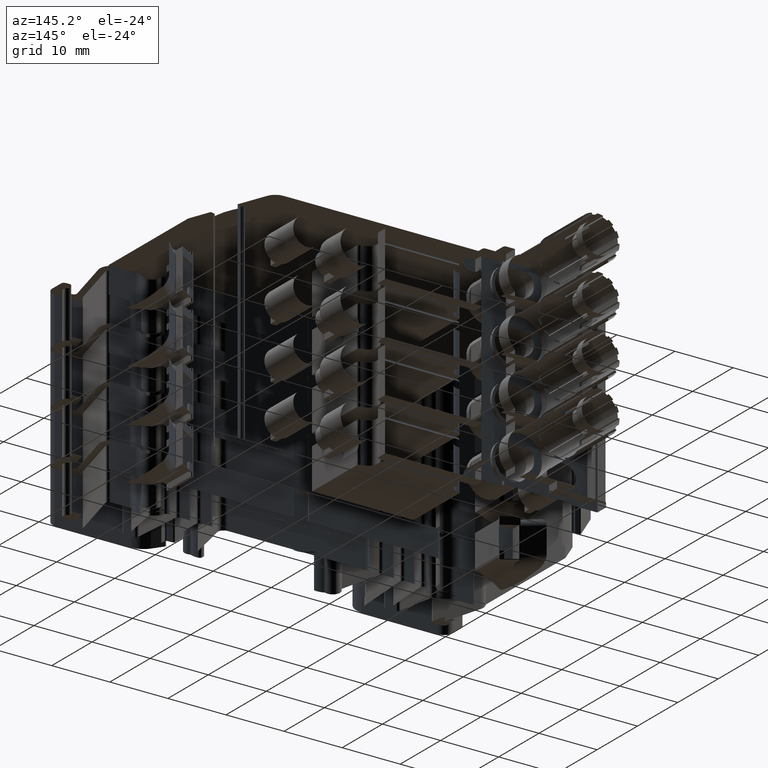
[diagram: clean part render]
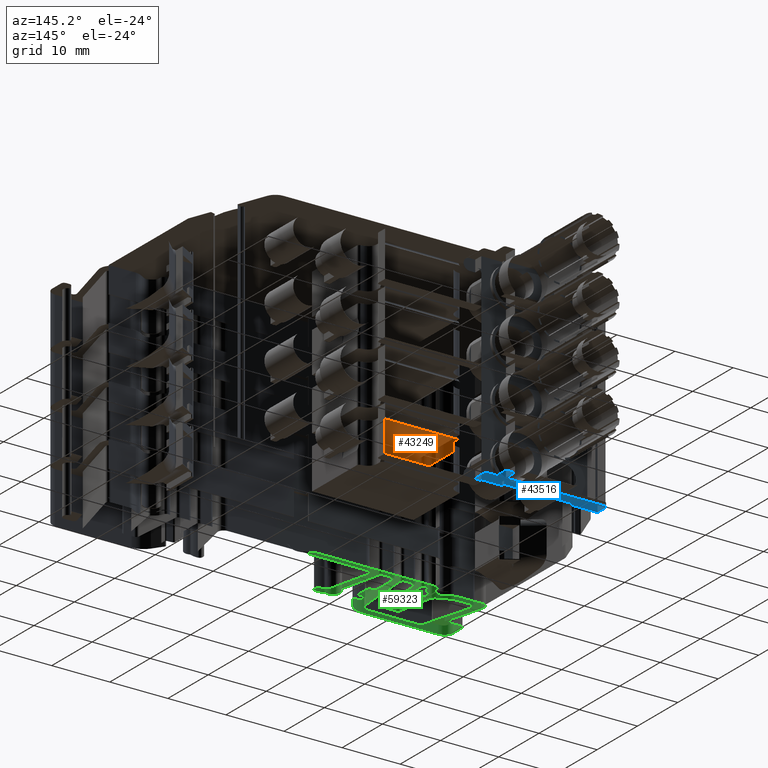
[diagram: same view with three faces highlighted in distinct colors, each labeled with its STEP entity id]
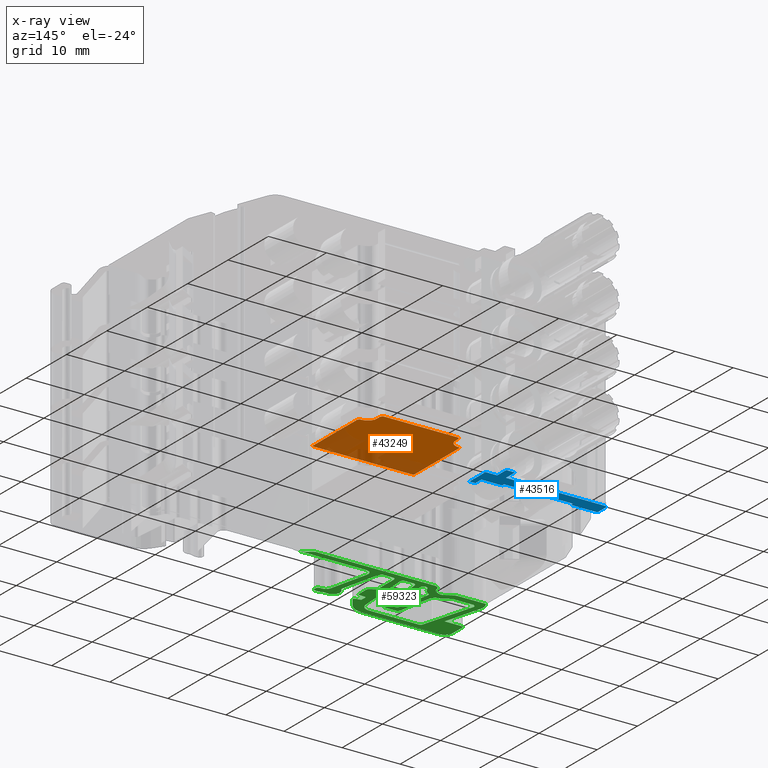
[diagram: x-ray of the same camera — body ghosted, the three highlighted faces saturated]
A machine part, auxiliary view with three faces highlighted in distinct colors.
The next image is the same camera in x-ray (body ghosted, the three faces saturated) — at least one of them is partly hidden behind the body in this view.
Their STEP definitions:

[orange] entity #43249 — the highlighted planar face has unit normal (0, 0, 1).
#1227 = CARTESIAN_POINT ( 'NONE',  ( 465.1854120011371900, 138.2141376324242100, 7.900000000000000400 ) ) ;
#1230 = CARTESIAN_POINT ( 'NONE',  ( 465.0778113377738200, 138.0873179750633700, 7.900000000000000400 ) ) ;
#1240 = CARTESIAN_POINT ( 'NONE',  ( 465.1219238960353600, 138.1372513765213600, 7.899999999999999500 ) ) ;
#1243 = CARTESIAN_POINT ( 'NONE',  ( 465.0538855435664800, 138.0620456083513000, 7.900000000000000400 ) ) ;
#1244 = CARTESIAN_POINT ( 'NONE',  ( 464.8376118570368500, 137.8708217141351000, 7.900000000000000400 ) ) ;
#1245 = CARTESIAN_POINT ( 'NONE',  ( 465.4750236782399500, 138.8367716798724400, 7.900000000000000400 ) ) ;
#1247 = CARTESIAN_POINT ( 'NONE',  ( 465.4752094327940300, 139.1048603657970100, 7.900000000000000400 ) ) ;
#1248 = CARTESIAN_POINT ( 'NONE',  ( 464.9395480618463200, 137.9486712032021400, 7.900000000000002100 ) ) ;
#1249 = CARTESIAN_POINT ( 'NONE',  ( 465.2408579093692500, 138.2969823494750600, 7.900000000000000400 ) ) ;
#1252 = CARTESIAN_POINT ( 'NONE',  ( 464.7252094327940900, 137.8058222601203200, 7.900000000000000400 ) ) ;
#1260 = CARTESIAN_POINT ( 'NONE',  ( 465.4078060548757800, 138.5863724310845800, 7.900000000000000400 ) ) ;
#1345 = CARTESIAN_POINT ( 'NONE',  ( 479.3098873987476100, 138.1234392650392000, 7.900000000000000400 ) ) ;
#1347 = CARTESIAN_POINT ( 'NONE',  ( 463.8612094327940000, 137.5425024254273600, 7.900000000000000400 ) ) ;
#1349 = CARTESIAN_POINT ( 'NONE',  ( 464.1693169139337000, 137.5642994215256500, 7.900000000000000400 ) ) ;
#1353 = CARTESIAN_POINT ( 'NONE',  ( 479.7252094327940900, 137.8058222601203500, 7.900000000000000400 ) ) ;
#1354 = CARTESIAN_POINT ( 'NONE',  ( 479.4931306975966500, 137.9400274712434700, 7.900000000000003900 ) ) ;
#1355 = CARTESIAN_POINT ( 'NONE',  ( 464.7252094327940900, 137.8058222601203200, 7.900000000000000400 ) ) ;
#1356 = CARTESIAN_POINT ( 'NONE',  ( 464.4573169139337100, 137.6520726997566400, 7.900000000000000400 ) ) ;
#1357 = CARTESIAN_POINT ( 'NONE',  ( 478.9752993990813900, 138.9750172839613600, 7.899999999999999500 ) ) ;
#1360 = CARTESIAN_POINT ( 'NONE',  ( 479.0327673060185700, 138.6921068301323900, 7.900000000000000400 ) ) ;
#1361 = CARTESIAN_POINT ( 'NONE',  ( 478.9917509318805700, 138.8478131964975000, 7.900000000000000400 ) ) ;
#1362 = CARTESIAN_POINT ( 'NONE',  ( 479.0426909204987300, 138.6587503011935800, 7.900000000000000400 ) ) ;
#1363 = CARTESIAN_POINT ( 'NONE',  ( 478.9752094327940300, 139.1048603657970100, 7.900000000000000400 ) ) ;
#1364 = CARTESIAN_POINT ( 'NONE',  ( 479.1427423092099500, 138.4127156409865300, 7.900000000000002100 ) ) ;
#1365 = CARTESIAN_POINT ( 'NONE',  ( 479.0987196337882200, 138.5021555645797100, 7.900000000000002100 ) ) ;
#1368 = CARTESIAN_POINT ( 'NONE',  ( 479.0638782355268300, 138.5955810043863000, 7.900000000000000400 ) ) ;
#1402 = CARTESIAN_POINT ( 'NONE',  ( 480.5892094327941200, 137.5425024254273600, 7.900000000000000400 ) ) ;
#1410 = CARTESIAN_POINT ( 'NONE',  ( 480.7141482196913100, 137.5339868771587500, 7.900000000000000400 ) ) ;
#1414 = LINE ( 'NONE', #1464, #4306 ) ;
#1457 = CARTESIAN_POINT ( 'NONE',  ( 480.8350996233278900, 137.4764919451312200, 7.900000000000002100 ) ) ;
#1464 = CARTESIAN_POINT ( 'NONE',  ( 481.0552094327940200, 119.1878730676890000, 7.900000000000000400 ) ) ;
#1470 = DIRECTION ( 'NONE',  ( -0.0000000000000000000, 1.000000000000000000, 0.0000000000000000000 ) ) ;
#1475 = CARTESIAN_POINT ( 'NONE',  ( 481.0060722785180500, 137.2934695112277000, 7.900000000000000400 ) ) ;
#1476 = CARTESIAN_POINT ( 'NONE',  ( 481.0552094327940200, 137.0436597648619900, 7.900000000000000400 ) ) ;
#1483 = CARTESIAN_POINT ( 'NONE',  ( 481.0552094327940700, 137.1688884158716100, 7.900000000000000400 ) ) ;
#4306 = VECTOR ( 'NONE', #1470, 1000.000000000000000 ) ;
#4328 = VECTOR ( 'NONE', #77764, 1000.000000000000000 ) ;
#4389 = VECTOR ( 'NONE', #77795, 1000.000000000000000 ) ;
#18402 = EDGE_LOOP ( 'NONE', ( #19061, #19118, #18997, #19083, #19077, #19084, #19080, #19058, #19088, #19110, #19099, #19090, #19072, #19116 ) ) ;
#18997 = ORIENTED_EDGE ( 'NONE', *, *, #40233, .T. ) ;
#19058 = ORIENTED_EDGE ( 'NONE', *, *, #88321, .T. ) ;
#19061 = ORIENTED_EDGE ( 'NONE', *, *, #40180, .T. ) ;
#19072 = ORIENTED_EDGE ( 'NONE', *, *, #40220, .T. ) ;
#19077 = ORIENTED_EDGE ( 'NONE', *, *, #40183, .T. ) ;
#19080 = ORIENTED_EDGE ( 'NONE', *, *, #88303, .F. ) ;
#19083 = ORIENTED_EDGE ( 'NONE', *, *, #40234, .F. ) ;
#19084 = ORIENTED_EDGE ( 'NONE', *, *, #40222, .T. ) ;
#19088 = ORIENTED_EDGE ( 'NONE', *, *, #88300, .T. ) ;
#19090 = ORIENTED_EDGE ( 'NONE', *, *, #40202, .T. ) ;
#19099 = ORIENTED_EDGE ( 'NONE', *, *, #88333, .T. ) ;
#19110 = ORIENTED_EDGE ( 'NONE', *, *, #88311, .T. ) ;
#19116 = ORIENTED_EDGE ( 'NONE', *, *, #40172, .F. ) ;
#19118 = ORIENTED_EDGE ( 'NONE', *, *, #40187, .T. ) ;
#24711 = LINE ( 'NONE', #24760, #74366 ) ;
#24727 = DIRECTION ( 'NONE',  ( -1.000000000000000000, -0.0000000000000000000, -0.0000000000000000000 ) ) ;
#24760 = CARTESIAN_POINT ( 'NONE',  ( 463.7252094327940300, 140.2842543253054000, 7.900000000000000400 ) ) ;
#24764 = LINE ( 'NONE', #24766, #74524 ) ;
#24766 = CARTESIAN_POINT ( 'NONE',  ( 478.9752094327940300, 137.2554713541223900, 7.900000000000000400 ) ) ;
#24844 = CARTESIAN_POINT ( 'NONE',  ( 465.9752094327940300, 140.2842543253054000, 7.900000000000000400 ) ) ;
#24848 = CARTESIAN_POINT ( 'NONE',  ( 465.9433368616505500, 140.2841866835779600, 7.899999999999999500 ) ) ;
#24852 = CARTESIAN_POINT ( 'NONE',  ( 465.8964265139453600, 140.2797477210988000, 7.900000000000000400 ) ) ;
#24855 = CARTESIAN_POINT ( 'NONE',  ( 465.8508639297551200, 140.2688025087876700, 7.900000000000002100 ) ) ;
#24857 = CARTESIAN_POINT ( 'NONE',  ( 465.8207883766315300, 140.2600598672841000, 7.900000000000002100 ) ) ;
#24859 = CARTESIAN_POINT ( 'NONE',  ( 465.7272747708168500, 140.2239323400264100, 7.899999999999999500 ) ) ;
#24861 = CARTESIAN_POINT ( 'NONE',  ( 465.6702754305956700, 140.1863224951448200, 7.900000000000000400 ) ) ;
#24864 = CARTESIAN_POINT ( 'NONE',  ( 465.5973463480033300, 140.1135503262755700, 7.900000000000002100 ) ) ;
#24877 = CARTESIAN_POINT ( 'NONE',  ( 465.8071339048119600, 140.2554525097891400, 7.900000000000000400 ) ) ;
#24884 = CARTESIAN_POINT ( 'NONE',  ( 465.5651964823632600, 140.0741690295818400, 7.900000000000003900 ) ) ;
#24889 = CARTESIAN_POINT ( 'NONE',  ( 465.5395186302064900, 140.0302949144990800, 7.900000000000002100 ) ) ;
#24909 = DIRECTION ( 'NONE',  ( -0.0000000000000000000, -1.000000000000000000, -0.0000000000000000000 ) ) ;
#24933 = CARTESIAN_POINT ( 'NONE',  ( 465.4870474228466200, 139.9097051757849800, 7.900000000000003900 ) ) ;
#24971 = CARTESIAN_POINT ( 'NONE',  ( 465.4752094327940300, 139.7842543253054000, 7.900000000000000400 ) ) ;
#24972 = CARTESIAN_POINT ( 'NONE',  ( 465.5161322471167900, 139.9829508061617100, 7.900000000000002100 ) ) ;
#24991 = CARTESIAN_POINT ( 'NONE',  ( 465.5238382873207000, 140.0000471003574800, 7.900000000000002100 ) ) ;
#24994 = CARTESIAN_POINT ( 'NONE',  ( 465.4753454730237100, 139.8483560575246800, 7.900000000000002100 ) ) ;
#25019 = CARTESIAN_POINT ( 'NONE',  ( 478.8772776026461300, 140.0891883274840100, 7.899999999999999500 ) ) ;
#25025 = CARTESIAN_POINT ( 'NONE',  ( 478.5393111649788700, 140.2841182850758900, 7.900000000000002100 ) ) ;
#25034 = CARTESIAN_POINT ( 'NONE',  ( 478.6910022078405400, 140.2356254707873700, 7.900000000000000400 ) ) ;
#25043 = CARTESIAN_POINT ( 'NONE',  ( 478.4752094327939700, 140.2842543253054000, 7.900000000000000400 ) ) ;
#25047 = CARTESIAN_POINT ( 'NONE',  ( 478.9707028285874900, 139.8630372441546100, 7.899999999999999500 ) ) ;
#25049 = CARTESIAN_POINT ( 'NONE',  ( 478.9464076172767500, 139.9523298532900800, 7.900000000000000400 ) ) ;
#25051 = CARTESIAN_POINT ( 'NONE',  ( 478.8045054337580400, 140.1621174101060200, 7.900000000000002100 ) ) ;
#25053 = CARTESIAN_POINT ( 'NONE',  ( 478.7651241370593300, 140.1942672757537300, 7.900000000000002100 ) ) ;
#25068 = CARTESIAN_POINT ( 'NONE',  ( 478.9752094327940300, 139.7842543253054000, 7.900000000000000400 ) ) ;
#25070 = CARTESIAN_POINT ( 'NONE',  ( 478.9751417910665600, 139.8161268964491900, 7.900000000000002100 ) ) ;
#25072 = CARTESIAN_POINT ( 'NONE',  ( 478.9510149747728200, 139.9386753814681000, 7.900000000000000400 ) ) ;
#25084 = CARTESIAN_POINT ( 'NONE',  ( 478.7212500219790200, 140.2199451279065800, 7.900000000000000400 ) ) ;
#25094 = CARTESIAN_POINT ( 'NONE',  ( 478.9148874475191100, 140.0321889872714100, 7.900000000000000400 ) ) ;
#25099 = CARTESIAN_POINT ( 'NONE',  ( 478.9597576162763100, 139.9085998283447900, 7.900000000000000400 ) ) ;
#25101 = CARTESIAN_POINT ( 'NONE',  ( 478.6006602832389900, 140.2724163352529300, 7.900000000000002100 ) ) ;
#25109 = CARTESIAN_POINT ( 'NONE',  ( 478.6739059136588700, 140.2433315109825000, 7.900000000000000400 ) ) ;
#25125 = LINE ( 'NONE', #25160, #74713 ) ;
#25160 = CARTESIAN_POINT ( 'NONE',  ( 465.4752094327940300, 119.1878730676890000, 7.900000000000000400 ) ) ;
#25214 = DIRECTION ( 'NONE',  ( 0.0000000000000000000, -1.000000000000000000, -0.0000000000000000000 ) ) ;
#28409 = CARTESIAN_POINT ( 'NONE',  ( 465.4752094327940300, 139.1048603657970100, 7.900000000000000400 ) ) ;
#28423 = CARTESIAN_POINT ( 'NONE',  ( 478.9752094327940300, 139.7842543253054000, 7.900000000000000400 ) ) ;
#28457 = CARTESIAN_POINT ( 'NONE',  ( 465.9752094327940300, 140.2842543253054000, 7.900000000000000400 ) ) ;
#28461 = CARTESIAN_POINT ( 'NONE',  ( 478.4752094327939700, 140.2842543253054000, 7.900000000000000400 ) ) ;
#28472 = CARTESIAN_POINT ( 'NONE',  ( 465.4752094327940300, 139.7842543253054000, 7.900000000000000400 ) ) ;
#28492 = CARTESIAN_POINT ( 'NONE',  ( 478.9752094327940300, 139.1048603657970100, 7.900000000000000400 ) ) ;
#40172 = EDGE_CURVE ( 'NONE', #90459, #89204, #67358, .T. ) ;
#40180 = EDGE_CURVE ( 'NONE', #90459, #89103, #77727, .T. ) ;
#40183 = EDGE_CURVE ( 'NONE', #89214, #89158, #67608, .T. ) ;
#40187 = EDGE_CURVE ( 'NONE', #89103, #89178, #77788, .T. ) ;
#40202 = EDGE_CURVE ( 'NONE', #87019, #90470, #67580, .T. ) ;
#40220 = EDGE_CURVE ( 'NONE', #90470, #89204, #67367, .T. ) ;
#40222 = EDGE_CURVE ( 'NONE', #89158, #87014, #67331, .T. ) ;
#40233 = EDGE_CURVE ( 'NONE', #89178, #89227, #1414, .T. ) ;
#40234 = EDGE_CURVE ( 'NONE', #89214, #89227, #67686, .T. ) ;
#43249 = ADVANCED_FACE ( 'NONE', ( #48889 ), #48917, .T. ) ;
#44654 = AXIS2_PLACEMENT_3D ( 'NONE', #48932, #48927, #48910 ) ;
#48889 = FACE_OUTER_BOUND ( 'NONE', #18402, .T. ) ;
#48910 = DIRECTION ( 'NONE',  ( 1.000000000000000000, 0.0000000000000000000, -0.0000000000000000000 ) ) ;
#48917 = PLANE ( 'NONE',  #44654 ) ;
#48927 = DIRECTION ( 'NONE',  ( 0.0000000000000000000, 0.0000000000000000000, 1.000000000000000000 ) ) ;
#48932 = CARTESIAN_POINT ( 'NONE',  ( 462.4252094327940200, 119.1878730676890000, 7.900000000000000400 ) ) ;
#67331 = B_SPLINE_CURVE_WITH_KNOTS ( 'NONE', 3,
 ( #1353, #1354, #1345, #1364, #1365, #1368, #1362, #1360, #1361, #1357, #1363 ),
 .UNSPECIFIED., .F., .F.,
 ( 4, 2, 1, 2, 2, 4 ),
 ( 0.0000000000000000000, 0.5000000000002192700, 0.6250000000002143800, 0.6875000000001878500, 0.7500000000001612000, 1.000000000000000000 ),
 .UNSPECIFIED. ) ;
#67358 = B_SPLINE_CURVE_WITH_KNOTS ( 'NONE', 3,
 ( #77699, #77711, #77709, #77703 ),
 .UNSPECIFIED., .F., .F.,
 ( 4, 4 ),
 ( 0.0000000000000000000, 1.000000000000000000 ),
 .UNSPECIFIED. ) ;
#67367 = B_SPLINE_CURVE_WITH_KNOTS ( 'NONE', 3,
 ( #1355, #1356, #1349, #1347 ),
 .UNSPECIFIED., .F., .F.,
 ( 4, 4 ),
 ( 0.0000000000000000000, 1.000000000000000000 ),
 .UNSPECIFIED. ) ;
#67580 = B_SPLINE_CURVE_WITH_KNOTS ( 'NONE', 3,
 ( #1247, #1245, #1260, #1249, #1227, #1240, #1230, #1243, #1248, #1244, #1252 ),
 .UNSPECIFIED., .F., .F.,
 ( 4, 2, 1, 2, 2, 4 ),
 ( 0.0000000000000000000, 0.5000000000000628400, 0.6250000000001045800, 0.6875000000000933700, 0.7500000000000822700, 1.000000000000000000 ),
 .UNSPECIFIED. ) ;
#67608 = B_SPLINE_CURVE_WITH_KNOTS ( 'NONE', 3,
 ( #77745, #77757, #77746, #77765 ),
 .UNSPECIFIED., .F., .F.,
 ( 4, 4 ),
 ( 0.0000000000000000000, 1.000000000000000000 ),
 .UNSPECIFIED. ) ;
#67686 = B_SPLINE_CURVE_WITH_KNOTS ( 'NONE', 3,
 ( #1402, #1410, #1457, #1475, #1483, #1476 ),
 .UNSPECIFIED., .F., .F.,
 ( 4, 2, 4 ),
 ( 0.0000000000000000000, 0.5000000000000000000, 1.000000000000000000 ),
 .UNSPECIFIED. ) ;
#74366 = VECTOR ( 'NONE', #24727, 1000.000000000000000 ) ;
#74524 = VECTOR ( 'NONE', #24909, 1000.000000000000000 ) ;
#74713 = VECTOR ( 'NONE', #25214, 1000.000000000000000 ) ;
#77699 = CARTESIAN_POINT ( 'NONE',  ( 463.5678849438149900, 137.4216262698789700, 7.900000000000000400 ) ) ;
#77703 = CARTESIAN_POINT ( 'NONE',  ( 463.8612094327940000, 137.5425024254273600, 7.900000000000000400 ) ) ;
#77709 = CARTESIAN_POINT ( 'NONE',  ( 463.7538475748430600, 137.5351848813220400, 7.900000000000000400 ) ) ;
#77711 = CARTESIAN_POINT ( 'NONE',  ( 463.6492316076626100, 137.4920736635516800, 7.900000000000000400 ) ) ;
#77727 = LINE ( 'NONE', #77763, #4328 ) ;
#77745 = CARTESIAN_POINT ( 'NONE',  ( 480.5892094327941200, 137.5425024254273600, 7.900000000000000400 ) ) ;
#77746 = CARTESIAN_POINT ( 'NONE',  ( 479.9931019516541800, 137.6520726997566400, 7.900000000000000400 ) ) ;
#77757 = CARTESIAN_POINT ( 'NONE',  ( 480.2811019516541900, 137.5642994215256500, 7.900000000000000400 ) ) ;
#77763 = CARTESIAN_POINT ( 'NONE',  ( 463.5678849438149900, 119.1878730676890000, 7.900000000000000400 ) ) ;
#77764 = DIRECTION ( 'NONE',  ( 0.0000000000000000000, -1.000000000000000000, -0.0000000000000000000 ) ) ;
#77765 = CARTESIAN_POINT ( 'NONE',  ( 479.7252094327940900, 137.8058222601203500, 7.900000000000000400 ) ) ;
#77788 = LINE ( 'NONE', #77796, #4389 ) ;
#77795 = DIRECTION ( 'NONE',  ( 1.000000000000000000, 0.0000000000000000000, -0.0000000000000000000 ) ) ;
#77796 = CARTESIAN_POINT ( 'NONE',  ( 462.4252094327940200, 126.0068965332545900, 7.900000000000000400 ) ) ;
#78223 = CARTESIAN_POINT ( 'NONE',  ( 463.5678849438149900, 137.4216262698789700, 7.900000000000000400 ) ) ;
#78252 = CARTESIAN_POINT ( 'NONE',  ( 464.7252094327940900, 137.8058222601203200, 7.900000000000000400 ) ) ;
#80173 = CARTESIAN_POINT ( 'NONE',  ( 463.5678849438149900, 126.0068965332545900, 7.900000000000000400 ) ) ;
#80231 = CARTESIAN_POINT ( 'NONE',  ( 479.7252094327940900, 137.8058222601203500, 7.900000000000000400 ) ) ;
#80262 = CARTESIAN_POINT ( 'NONE',  ( 480.5892094327941200, 137.5425024254273600, 7.900000000000000400 ) ) ;
#80277 = CARTESIAN_POINT ( 'NONE',  ( 481.0552094327940200, 126.0068965332545900, 7.900000000000000400 ) ) ;
#80284 = CARTESIAN_POINT ( 'NONE',  ( 463.8612094327940000, 137.5425024254273600, 7.900000000000000400 ) ) ;
#80292 = CARTESIAN_POINT ( 'NONE',  ( 481.0552094327940200, 137.0436597648619900, 7.900000000000000400 ) ) ;
#83102 = B_SPLINE_CURVE_WITH_KNOTS ( 'NONE', 3,
 ( #24844, #24848, #24852, #24855, #24857, #24877, #24859, #24861, #24864, #24884, #24889, #24991, #24972, #24933, #24994, #24971 ),
 .UNSPECIFIED., .F., .F.,
 ( 4, 1, 2, 2, 2, 1, 2, 2, 4 ),
 ( 0.0000000000000000000, 0.1250000000000084900, 0.1875000000000127400, 0.2500000000000169900, 0.5000000000001081400, 0.6250000000001894000, 0.6875000000001307800, 0.7500000000000721600, 1.000000000000000000 ),
 .UNSPECIFIED. ) ;
#83139 = B_SPLINE_CURVE_WITH_KNOTS ( 'NONE', 3,
 ( #25068, #25070, #25047, #25099, #25072, #25049, #25094, #25019, #25051, #25053, #25084, #25034, #25109, #25101, #25025, #25043 ),
 .UNSPECIFIED., .F., .F.,
 ( 4, 1, 2, 2, 2, 1, 2, 2, 4 ),
 ( 0.0000000000000000000, 0.1249999999999679700, 0.1875000000000065200, 0.2500000000000450800, 0.5000000000003872500, 0.6250000000004511900, 0.6875000000003692600, 0.7500000000002873300, 1.000000000000000000 ),
 .UNSPECIFIED. ) ;
#87014 = VERTEX_POINT ( 'NONE', #28492 ) ;
#87018 = VERTEX_POINT ( 'NONE', #28457 ) ;
#87019 = VERTEX_POINT ( 'NONE', #28409 ) ;
#87037 = VERTEX_POINT ( 'NONE', #28461 ) ;
#87039 = VERTEX_POINT ( 'NONE', #28423 ) ;
#87052 = VERTEX_POINT ( 'NONE', #28472 ) ;
#88300 = EDGE_CURVE ( 'NONE', #87037, #87018, #24711, .T. ) ;
#88303 = EDGE_CURVE ( 'NONE', #87039, #87014, #24764, .T. ) ;
#88311 = EDGE_CURVE ( 'NONE', #87018, #87052, #83102, .T. ) ;
#88321 = EDGE_CURVE ( 'NONE', #87039, #87037, #83139, .T. ) ;
#88333 = EDGE_CURVE ( 'NONE', #87052, #87019, #25125, .T. ) ;
#89103 = VERTEX_POINT ( 'NONE', #80173 ) ;
#89158 = VERTEX_POINT ( 'NONE', #80231 ) ;
#89178 = VERTEX_POINT ( 'NONE', #80277 ) ;
#89204 = VERTEX_POINT ( 'NONE', #80284 ) ;
#89214 = VERTEX_POINT ( 'NONE', #80262 ) ;
#89227 = VERTEX_POINT ( 'NONE', #80292 ) ;
#90459 = VERTEX_POINT ( 'NONE', #78223 ) ;
#90470 = VERTEX_POINT ( 'NONE', #78252 ) ;

[blue] entity #43516 — the highlighted planar face has unit normal (-0, 0, 1).
#1782 = ORIENTED_EDGE ( 'NONE', *, *, #88270, .T. ) ;
#1792 = ORIENTED_EDGE ( 'NONE', *, *, #88269, .F. ) ;
#1803 = ORIENTED_EDGE ( 'NONE', *, *, #88229, .T. ) ;
#1805 = ORIENTED_EDGE ( 'NONE', *, *, #88243, .T. ) ;
#1808 = ORIENTED_EDGE ( 'NONE', *, *, #88255, .T. ) ;
#1810 = ORIENTED_EDGE ( 'NONE', *, *, #88260, .F. ) ;
#1812 = ORIENTED_EDGE ( 'NONE', *, *, #88227, .T. ) ;
#1817 = ORIENTED_EDGE ( 'NONE', *, *, #88248, .T. ) ;
#1824 = ORIENTED_EDGE ( 'NONE', *, *, #88254, .T. ) ;
#1832 = ORIENTED_EDGE ( 'NONE', *, *, #40844, .T. ) ;
#1835 = ORIENTED_EDGE ( 'NONE', *, *, #88258, .T. ) ;
#1839 = ORIENTED_EDGE ( 'NONE', *, *, #88236, .T. ) ;
#1844 = ORIENTED_EDGE ( 'NONE', *, *, #88283, .F. ) ;
#1845 = ORIENTED_EDGE ( 'NONE', *, *, #88275, .F. ) ;
#1867 = ORIENTED_EDGE ( 'NONE', *, *, #88238, .T. ) ;
#6783 = CARTESIAN_POINT ( 'NONE',  ( 448.7074647449180100, 144.0878730676890000, 0.6000000000000580400 ) ) ;
#6852 = CARTESIAN_POINT ( 'NONE',  ( 460.5429541206700600, 144.0878730676890000, 0.6000000000000771400 ) ) ;
#18098 = EDGE_LOOP ( 'NONE', ( #1803, #1867, #1817, #1845, #1812, #1782, #1824, #1805, #1839, #1835, #1832, #1810, #1808, #1844, #1792 ) ) ;
#23972 = LINE ( 'NONE', #23990, #74175 ) ;
#23990 = CARTESIAN_POINT ( 'NONE',  ( 461.6252094327940100, 142.0878730676890000, 0.6000000000001016700 ) ) ;
#24002 = DIRECTION ( 'NONE',  ( -9.546107180843072800E-035, -1.000000000000000000, 2.733577826868160200E-020 ) ) ;
#24020 = LINE ( 'NONE', #24023, #74191 ) ;
#24023 = CARTESIAN_POINT ( 'NONE',  ( 465.1252094327940100, 142.0878730676890000, 0.6000000000001138900 ) ) ;
#24025 = DIRECTION ( 'NONE',  ( 9.546107180843072800E-035, 1.000000000000000000, -2.733577826868160200E-020 ) ) ;
#24063 = CARTESIAN_POINT ( 'NONE',  ( 465.1252094327940100, 146.0878730676890000, 0.6000000000001138900 ) ) ;
#24067 = DIRECTION ( 'NONE',  ( -1.000000000000000000, -0.0000000000000000000, -3.492165866658340700E-015 ) ) ;
#24083 = LINE ( 'NONE', #24063, #74206 ) ;
#24085 = DIRECTION ( 'NONE',  ( 1.000000000000000000, 0.0000000000000000000, 3.492165866658340700E-015 ) ) ;
#24127 = LINE ( 'NONE', #24141, #74331 ) ;
#24141 = CARTESIAN_POINT ( 'NONE',  ( 465.1252094327940100, 143.5878730676890000, 0.6000000000001138900 ) ) ;
#24205 = LINE ( 'NONE', #24228, #74486 ) ;
#24217 = LINE ( 'NONE', #24223, #74453 ) ;
#24223 = CARTESIAN_POINT ( 'NONE',  ( 463.1252094327940100, 142.0878730676890000, 0.6000000000001070000 ) ) ;
#24228 = CARTESIAN_POINT ( 'NONE',  ( 444.1252094327941200, 142.0878730676890000, 0.6000000000000406100 ) ) ;
#24237 = DIRECTION ( 'NONE',  ( -9.546107180843072800E-035, -1.000000000000000000, 2.733577826868160200E-020 ) ) ;
#24253 = DIRECTION ( 'NONE',  ( 9.546107180843072800E-035, 1.000000000000000000, -2.733577826868160200E-020 ) ) ;
#24270 = CARTESIAN_POINT ( 'NONE',  ( 444.2151964823512500, 145.8777877719535900, 0.6000000000000408300 ) ) ;
#24272 = CARTESIAN_POINT ( 'NONE',  ( 444.1252094327941800, 145.5878730676890000, 0.6000000000000490500 ) ) ;
#24274 = CARTESIAN_POINT ( 'NONE',  ( 465.1252094327940100, 143.5878730676890000, 0.6000000000001138900 ) ) ;
#24276 = CARTESIAN_POINT ( 'NONE',  ( 444.5933368616532600, 146.0878054259615600, 0.6000000000000421700 ) ) ;
#24279 = CARTESIAN_POINT ( 'NONE',  ( 444.6252094327941200, 146.0878730676890000, 0.6000000000000641500 ) ) ;
#24280 = CARTESIAN_POINT ( 'NONE',  ( 444.3772747708208600, 146.0275510824137700, 0.6000000000000416100 ) ) ;
#24282 = DIRECTION ( 'NONE',  ( 1.000000000000000000, 0.0000000000000000000, 3.492165866658340700E-015 ) ) ;
#24284 = CARTESIAN_POINT ( 'NONE',  ( 444.1370474228465400, 145.7133239181496000, 0.6000000000000408300 ) ) ;
#24292 = CARTESIAN_POINT ( 'NONE',  ( 444.2473463479967700, 145.9171690686525000, 0.6000000000000409500 ) ) ;
#24295 = LINE ( 'NONE', #24311, #74458 ) ;
#24303 = CARTESIAN_POINT ( 'NONE',  ( 444.1253454730236900, 145.6519747998893300, 0.6000000000000407200 ) ) ;
#24305 = CARTESIAN_POINT ( 'NONE',  ( 444.4707883766339500, 146.0636786096677300, 0.6000000000000418300 ) ) ;
#24311 = CARTESIAN_POINT ( 'NONE',  ( 448.7074647449180100, 142.0878730676890000, 0.6000000000000564900 ) ) ;
#24313 = DIRECTION ( 'NONE',  ( 9.546107180843072800E-035, 1.000000000000000000, -2.733577826868160200E-020 ) ) ;
#24317 = CARTESIAN_POINT ( 'NONE',  ( 444.5008639297588500, 146.0724212511712800, 0.6000000000000420600 ) ) ;
#24325 = CARTESIAN_POINT ( 'NONE',  ( 444.1738382873148800, 145.8036658427351700, 0.6000000000000406100 ) ) ;
#24331 = CARTESIAN_POINT ( 'NONE',  ( 444.1661322471168800, 145.7865695485499800, 0.6000000000000408300 ) ) ;
#24334 = CARTESIAN_POINT ( 'NONE',  ( 444.4571339048112600, 146.0590712521718600, 0.6000000000000418300 ) ) ;
#24353 = CARTESIAN_POINT ( 'NONE',  ( 444.1895186301973700, 145.8339136568733600, 0.6000000000000408300 ) ) ;
#24355 = LINE ( 'NONE', #24274, #74480 ) ;
#24360 = CARTESIAN_POINT ( 'NONE',  ( 444.5464265139499400, 146.0833664634824100, 0.6000000000000420600 ) ) ;
#24374 = CARTESIAN_POINT ( 'NONE',  ( 444.3202754306094000, 145.9899412375419300, 0.6000000000000412800 ) ) ;
#24407 = DIRECTION ( 'NONE',  ( -2.625714205539856700E-033, 1.000000000000000000, -9.169429524186327600E-048 ) ) ;
#24445 = CARTESIAN_POINT ( 'NONE',  ( 460.5429541206700600, 155.9385611811925100, 0.6000000000001138900 ) ) ;
#24475 = LINE ( 'NONE', #24445, #74425 ) ;
#24505 = CARTESIAN_POINT ( 'NONE',  ( 459.1252094327940100, 148.3378730676890000, 0.6000000000001143300 ) ) ;
#24516 = LINE ( 'NONE', #24505, #74401 ) ;
#24531 = CARTESIAN_POINT ( 'NONE',  ( 465.1252094327940100, 142.0878730676890000, 0.6000000000001138900 ) ) ;
#24545 = LINE ( 'NONE', #24531, #74434 ) ;
#24555 = LINE ( 'NONE', #24569, #74528 ) ;
#24560 = DIRECTION ( 'NONE',  ( 1.000000000000000000, 2.530253133731424900E-033, -6.916643862731900400E-053 ) ) ;
#24569 = CARTESIAN_POINT ( 'NONE',  ( 465.1252094327940100, 146.0878730676890000, 0.6000000000001138900 ) ) ;
#24573 = DIRECTION ( 'NONE',  ( -1.000000000000000000, -2.530253133731424900E-033, 6.916643862731900400E-053 ) ) ;
#24584 = DIRECTION ( 'NONE',  ( -1.000000000000000000, -0.0000000000000000000, -3.492165866658340700E-015 ) ) ;
#24595 = LINE ( 'NONE', #24696, #74391 ) ;
#24631 = DIRECTION ( 'NONE',  ( -2.625714205539857000E-033, 1.000000000000000000, -9.169429524186343400E-048 ) ) ;
#24696 = CARTESIAN_POINT ( 'NONE',  ( 464.1252094327940100, 142.0878730676890000, 0.6000000000001138900 ) ) ;
#28308 = CARTESIAN_POINT ( 'NONE',  ( 463.1252094327940100, 146.0878730676890000, 0.6000000000001106700 ) ) ;
#28323 = CARTESIAN_POINT ( 'NONE',  ( 463.1252094327940100, 148.3378730676890000, 0.6000000000001125500 ) ) ;
#28329 = CARTESIAN_POINT ( 'NONE',  ( 464.1252094327940700, 142.0878730676890000, 0.6000000000001133300 ) ) ;
#28349 = CARTESIAN_POINT ( 'NONE',  ( 465.1252094327940100, 142.0878730676890000, 0.6000000000001141100 ) ) ;
#28407 = CARTESIAN_POINT ( 'NONE',  ( 444.1252094327941800, 145.5878730676890000, 0.6000000000000490500 ) ) ;
#28417 = CARTESIAN_POINT ( 'NONE',  ( 465.1252094327940100, 146.0878730676890000, 0.6000000000001141100 ) ) ;
#28429 = CARTESIAN_POINT ( 'NONE',  ( 461.6252094327940100, 148.3378730676890000, 0.6000000000001101100 ) ) ;
#28433 = CARTESIAN_POINT ( 'NONE',  ( 460.5429541206700600, 143.5878730676890000, 0.6000000000001085600 ) ) ;
#28454 = CARTESIAN_POINT ( 'NONE',  ( 461.6252094327940100, 146.0878730676890000, 0.6000000000001057800 ) ) ;
#28490 = CARTESIAN_POINT ( 'NONE',  ( 444.6252094327941200, 146.0878730676890000, 0.6000000000000641500 ) ) ;
#28502 = CARTESIAN_POINT ( 'NONE',  ( 464.1252094327940700, 143.5878730676890000, 0.6000000000001116700 ) ) ;
#28555 = CARTESIAN_POINT ( 'NONE',  ( 448.7074647449180100, 143.5878730676890000, 0.6000000000000564900 ) ) ;
#28635 = CARTESIAN_POINT ( 'NONE',  ( 444.1252094327941200, 143.5878730676890000, 0.6000000000000463900 ) ) ;
#29970 = DIRECTION ( 'NONE',  ( 1.000000000000000000, 2.530253133731424900E-033, -6.916643862731900400E-053 ) ) ;
#29987 = LINE ( 'NONE', #30006, #45074 ) ;
#30006 = CARTESIAN_POINT ( 'NONE',  ( 479.5850360910420100, 144.0878730676890000, 0.6000000000000588200 ) ) ;
#40844 = EDGE_CURVE ( 'NONE', #86608, #86616, #29987, .T. ) ;
#43516 = ADVANCED_FACE ( 'NONE', ( #64247 ), #64221, .T. ) ;
#44797 = AXIS2_PLACEMENT_3D ( 'NONE', #64232, #64250, #64252 ) ;
#45074 = VECTOR ( 'NONE', #29970, 1000.000000000000000 ) ;
#64221 = PLANE ( 'NONE',  #44797 ) ;
#64232 = CARTESIAN_POINT ( 'NONE',  ( 465.1252094327940100, 142.0878730676890000, 0.6000000000001138900 ) ) ;
#64247 = FACE_OUTER_BOUND ( 'NONE', #18098, .T. ) ;
#64250 = DIRECTION ( 'NONE',  ( -3.492165866658340700E-015, 2.733577826868160200E-020, 1.000000000000000000 ) ) ;
#64252 = DIRECTION ( 'NONE',  ( 1.000000000000000000, 0.0000000000000000000, 3.492165866658340700E-015 ) ) ;
#74175 = VECTOR ( 'NONE', #24002, 1000.000000000000000 ) ;
#74191 = VECTOR ( 'NONE', #24025, 1000.000000000000000 ) ;
#74206 = VECTOR ( 'NONE', #24067, 1000.000000000000000 ) ;
#74331 = VECTOR ( 'NONE', #24085, 1000.000000000000000 ) ;
#74391 = VECTOR ( 'NONE', #24631, 1000.000000000000000 ) ;
#74401 = VECTOR ( 'NONE', #24560, 1000.000000000000000 ) ;
#74425 = VECTOR ( 'NONE', #24407, 1000.000000000000000 ) ;
#74434 = VECTOR ( 'NONE', #24573, 1000.000000000000000 ) ;
#74453 = VECTOR ( 'NONE', #24253, 1000.000000000000000 ) ;
#74458 = VECTOR ( 'NONE', #24313, 1000.000000000000000 ) ;
#74480 = VECTOR ( 'NONE', #24282, 1000.000000000000000 ) ;
#74486 = VECTOR ( 'NONE', #24237, 1000.000000000000000 ) ;
#74528 = VECTOR ( 'NONE', #24584, 1000.000000000000000 ) ;
#82880 = B_SPLINE_CURVE_WITH_KNOTS ( 'NONE', 3,
 ( #24279, #24276, #24360, #24317, #24305, #24334, #24280, #24374, #24292, #24270, #24353, #24325, #24331, #24284, #24303, #24272 ),
 .UNSPECIFIED., .F., .F.,
 ( 4, 1, 2, 2, 2, 1, 2, 2, 4 ),
 ( 0.0000000000000000000, 0.1249999999999975900, 0.1874999999998872600, 0.2499999999997769000, 0.4999999999999735200, 0.6250000000000718300, 0.6875000000001074700, 0.7500000000001431100, 1.000000000000000000 ),
 .UNSPECIFIED. ) ;
#86608 = VERTEX_POINT ( 'NONE', #6783 ) ;
#86616 = VERTEX_POINT ( 'NONE', #6852 ) ;
#86954 = VERTEX_POINT ( 'NONE', #28349 ) ;
#86969 = VERTEX_POINT ( 'NONE', #28323 ) ;
#86975 = VERTEX_POINT ( 'NONE', #28308 ) ;
#86982 = VERTEX_POINT ( 'NONE', #28329 ) ;
#87000 = VERTEX_POINT ( 'NONE', #28433 ) ;
#87001 = VERTEX_POINT ( 'NONE', #28417 ) ;
#87002 = VERTEX_POINT ( 'NONE', #28502 ) ;
#87004 = VERTEX_POINT ( 'NONE', #28429 ) ;
#87029 = VERTEX_POINT ( 'NONE', #28490 ) ;
#87053 = VERTEX_POINT ( 'NONE', #28407 ) ;
#87055 = VERTEX_POINT ( 'NONE', #28454 ) ;
#87067 = VERTEX_POINT ( 'NONE', #28555 ) ;
#87127 = VERTEX_POINT ( 'NONE', #28635 ) ;
#88227 = EDGE_CURVE ( 'NONE', #87004, #87055, #23972, .T. ) ;
#88229 = EDGE_CURVE ( 'NONE', #86954, #87001, #24020, .T. ) ;
#88236 = EDGE_CURVE ( 'NONE', #87127, #87067, #24127, .T. ) ;
#88238 = EDGE_CURVE ( 'NONE', #87001, #86975, #24083, .T. ) ;
#88243 = EDGE_CURVE ( 'NONE', #87053, #87127, #24205, .T. ) ;
#88248 = EDGE_CURVE ( 'NONE', #86975, #86969, #24217, .T. ) ;
#88254 = EDGE_CURVE ( 'NONE', #87029, #87053, #82880, .T. ) ;
#88255 = EDGE_CURVE ( 'NONE', #87000, #87002, #24355, .T. ) ;
#88258 = EDGE_CURVE ( 'NONE', #87067, #86608, #24295, .T. ) ;
#88260 = EDGE_CURVE ( 'NONE', #87000, #86616, #24475, .T. ) ;
#88269 = EDGE_CURVE ( 'NONE', #86954, #86982, #24545, .T. ) ;
#88270 = EDGE_CURVE ( 'NONE', #87055, #87029, #24555, .T. ) ;
#88275 = EDGE_CURVE ( 'NONE', #87004, #86969, #24516, .T. ) ;
#88283 = EDGE_CURVE ( 'NONE', #86982, #87002, #24595, .T. ) ;

[green] entity #59323 — the highlighted planar face has unit normal (0, 0, 1).
#3081 = CARTESIAN_POINT ( 'NONE',  ( 459.3109260918481000, 108.3732478803352100, 0.0000000000000000000 ) ) ;
#3086 = CARTESIAN_POINT ( 'NONE',  ( 459.2872217880940300, 108.5896888965323900, 0.0000000000000000000 ) ) ;
#6307 = VERTEX_POINT ( 'NONE', #46431 ) ;
#6331 = VERTEX_POINT ( 'NONE', #46389 ) ;
#6337 = VERTEX_POINT ( 'NONE', #46384 ) ;
#6369 = VERTEX_POINT ( 'NONE', #46413 ) ;
#10373 = ORIENTED_EDGE ( 'NONE', *, *, #57090, .T. ) ;
#10377 = ORIENTED_EDGE ( 'NONE', *, *, #57068, .T. ) ;
#10468 = ORIENTED_EDGE ( 'NONE', *, *, #57000, .F. ) ;
#10471 = ORIENTED_EDGE ( 'NONE', *, *, #57046, .T. ) ;
#10483 = ORIENTED_EDGE ( 'NONE', *, *, #57004, .T. ) ;
#10497 = ORIENTED_EDGE ( 'NONE', *, *, #57074, .F. ) ;
#10523 = ORIENTED_EDGE ( 'NONE', *, *, #57036, .F. ) ;
#10547 = ORIENTED_EDGE ( 'NONE', *, *, #57006, .F. ) ;
#10551 = ORIENTED_EDGE ( 'NONE', *, *, #55728, .T. ) ;
#10582 = ORIENTED_EDGE ( 'NONE', *, *, #57020, .T. ) ;
#10586 = ORIENTED_EDGE ( 'NONE', *, *, #56994, .F. ) ;
#10609 = ORIENTED_EDGE ( 'NONE', *, *, #56992, .T. ) ;
#10628 = ORIENTED_EDGE ( 'NONE', *, *, #57076, .F. ) ;
#10635 = ORIENTED_EDGE ( 'NONE', *, *, #57008, .T. ) ;
#10647 = ORIENTED_EDGE ( 'NONE', *, *, #57032, .T. ) ;
#10691 = ORIENTED_EDGE ( 'NONE', *, *, #56906, .F. ) ;
#10709 = ORIENTED_EDGE ( 'NONE', *, *, #57098, .T. ) ;
#10720 = ORIENTED_EDGE ( 'NONE', *, *, #56166, .T. ) ;
#10738 = ORIENTED_EDGE ( 'NONE', *, *, #57092, .T. ) ;
#10745 = ORIENTED_EDGE ( 'NONE', *, *, #57044, .F. ) ;
#10747 = ORIENTED_EDGE ( 'NONE', *, *, #57082, .T. ) ;
#10764 = VERTEX_POINT ( 'NONE', #46818 ) ;
#10780 = ORIENTED_EDGE ( 'NONE', *, *, #57048, .T. ) ;
#10798 = ORIENTED_EDGE ( 'NONE', *, *, #57104, .T. ) ;
#10825 = ORIENTED_EDGE ( 'NONE', *, *, #57028, .F. ) ;
#10841 = ORIENTED_EDGE ( 'NONE', *, *, #57038, .T. ) ;
#10849 = ORIENTED_EDGE ( 'NONE', *, *, #57010, .F. ) ;
#10896 = ORIENTED_EDGE ( 'NONE', *, *, #56203, .F. ) ;
#10900 = ORIENTED_EDGE ( 'NONE', *, *, #57064, .T. ) ;
#10903 = ORIENTED_EDGE ( 'NONE', *, *, #57080, .T. ) ;
#11803 = ORIENTED_EDGE ( 'NONE', *, *, #57054, .F. ) ;
#11807 = ORIENTED_EDGE ( 'NONE', *, *, #56998, .T. ) ;
#11809 = ORIENTED_EDGE ( 'NONE', *, *, #57106, .T. ) ;
#11816 = ORIENTED_EDGE ( 'NONE', *, *, #57042, .F. ) ;
#11817 = ORIENTED_EDGE ( 'NONE', *, *, #57034, .F. ) ;
#11829 = ORIENTED_EDGE ( 'NONE', *, *, #57100, .T. ) ;
#11833 = ORIENTED_EDGE ( 'NONE', *, *, #57016, .T. ) ;
#11836 = ORIENTED_EDGE ( 'NONE', *, *, #56988, .F. ) ;
#11844 = ORIENTED_EDGE ( 'NONE', *, *, #56186, .F. ) ;
#11848 = ORIENTED_EDGE ( 'NONE', *, *, #57024, .F. ) ;
#11850 = ORIENTED_EDGE ( 'NONE', *, *, #57018, .F. ) ;
#11854 = ORIENTED_EDGE ( 'NONE', *, *, #57072, .F. ) ;
#11856 = ORIENTED_EDGE ( 'NONE', *, *, #57030, .F. ) ;
#11858 = ORIENTED_EDGE ( 'NONE', *, *, #56190, .T. ) ;
#11860 = ORIENTED_EDGE ( 'NONE', *, *, #56210, .F. ) ;
#11866 = ORIENTED_EDGE ( 'NONE', *, *, #57062, .T. ) ;
#11867 = ORIENTED_EDGE ( 'NONE', *, *, #57102, .T. ) ;
#11873 = ORIENTED_EDGE ( 'NONE', *, *, #56982, .F. ) ;
#11875 = ORIENTED_EDGE ( 'NONE', *, *, #57022, .F. ) ;
#11877 = ORIENTED_EDGE ( 'NONE', *, *, #55710, .F. ) ;
#11881 = ORIENTED_EDGE ( 'NONE', *, *, #57078, .F. ) ;
#11883 = ORIENTED_EDGE ( 'NONE', *, *, #57070, .T. ) ;
#11888 = ORIENTED_EDGE ( 'NONE', *, *, #57002, .T. ) ;
#11890 = ORIENTED_EDGE ( 'NONE', *, *, #56986, .F. ) ;
#11892 = ORIENTED_EDGE ( 'NONE', *, *, #56177, .T. ) ;
#11898 = ORIENTED_EDGE ( 'NONE', *, *, #57050, .T. ) ;
#11902 = ORIENTED_EDGE ( 'NONE', *, *, #57012, .F. ) ;
#11904 = ORIENTED_EDGE ( 'NONE', *, *, #56183, .F. ) ;
#11922 = ORIENTED_EDGE ( 'NONE', *, *, #57060, .T. ) ;
#11931 = ORIENTED_EDGE ( 'NONE', *, *, #55677, .F. ) ;
#11933 = ORIENTED_EDGE ( 'NONE', *, *, #57052, .T. ) ;
#11939 = ORIENTED_EDGE ( 'NONE', *, *, #57084, .T. ) ;
#11941 = ORIENTED_EDGE ( 'NONE', *, *, #57014, .T. ) ;
#11952 = ORIENTED_EDGE ( 'NONE', *, *, #56984, .F. ) ;
#11956 = ORIENTED_EDGE ( 'NONE', *, *, #56217, .T. ) ;
#11961 = ORIENTED_EDGE ( 'NONE', *, *, #55864, .T. ) ;
#11964 = ORIENTED_EDGE ( 'NONE', *, *, #56990, .T. ) ;
#11966 = ORIENTED_EDGE ( 'NONE', *, *, #56313, .T. ) ;
#11970 = ORIENTED_EDGE ( 'NONE', *, *, #57058, .T. ) ;
#11993 = ORIENTED_EDGE ( 'NONE', *, *, #57086, .T. ) ;
#11999 = ORIENTED_EDGE ( 'NONE', *, *, #56202, .T. ) ;
#12009 = ORIENTED_EDGE ( 'NONE', *, *, #56980, .T. ) ;
#12011 = ORIENTED_EDGE ( 'NONE', *, *, #56192, .T. ) ;
#12013 = ORIENTED_EDGE ( 'NONE', *, *, #57096, .T. ) ;
#12015 = ORIENTED_EDGE ( 'NONE', *, *, #56207, .T. ) ;
#12024 = ORIENTED_EDGE ( 'NONE', *, *, #57040, .T. ) ;
#12035 = ORIENTED_EDGE ( 'NONE', *, *, #55687, .F. ) ;
#12067 = ORIENTED_EDGE ( 'NONE', *, *, #57094, .F. ) ;
#12141 = ORIENTED_EDGE ( 'NONE', *, *, #57056, .T. ) ;
#12145 = ORIENTED_EDGE ( 'NONE', *, *, #57066, .F. ) ;
#12225 = ORIENTED_EDGE ( 'NONE', *, *, #57088, .T. ) ;
#12231 = ORIENTED_EDGE ( 'NONE', *, *, #57154, .F. ) ;
#16380 = CARTESIAN_POINT ( 'NONE',  ( 459.2533574021349000, 101.9096957522616100, 0.0000000000000000000 ) ) ;
#16384 = CARTESIAN_POINT ( 'NONE',  ( 458.8368203654540600, 100.9781166070622200, 0.0000000000000000000 ) ) ;
#16738 = CARTESIAN_POINT ( 'NONE',  ( 439.7252144585691600, 109.5896936420172900, 2.775557561562891400E-014 ) ) ;
#16739 = CARTESIAN_POINT ( 'NONE',  ( 439.2314115217246200, 108.2738767517102200, 0.0000000000000000000 ) ) ;
#17014 = CARTESIAN_POINT ( 'NONE',  ( 446.3528749767701800, 108.7596656278704900, 0.0000000000000000000 ) ) ;
#17015 = CARTESIAN_POINT ( 'NONE',  ( 448.3254475470130800, 109.8397906316018700, 0.0000000000000000000 ) ) ;
#17016 = CARTESIAN_POINT ( 'NONE',  ( 447.3528761128570700, 108.7596649719464200, 4.065758146820641600E-017 ) ) ;
#17044 = CARTESIAN_POINT ( 'NONE',  ( 447.8254475470129700, 109.0325042166678000, 0.0000000000000000000 ) ) ;
#17045 = CARTESIAN_POINT ( 'NONE',  ( 448.3254475470129700, 109.8985296204524100, 0.0000000000000000000 ) ) ;
#17060 = CARTESIAN_POINT ( 'NONE',  ( 472.2252094327939700, 109.5896892339132200, 0.0000000000000000000 ) ) ;
#17075 = CARTESIAN_POINT ( 'NONE',  ( 445.3793353427407700, 109.3217424033297600, 0.0000000000000000000 ) ) ;
#17083 = CARTESIAN_POINT ( 'NONE',  ( 469.6240203929550600, 110.6985886008790100, 0.0000000000000000000 ) ) ;
#17087 = CARTESIAN_POINT ( 'NONE',  ( 444.3793315652062000, 109.5896937618602900, 0.0000000000000000000 ) ) ;
#17110 = CARTESIAN_POINT ( 'NONE',  ( 470.3452155781735700, 110.3913205149824400, 0.0000000000000000000 ) ) ;
#17114 = CARTESIAN_POINT ( 'NONE',  ( 449.3154283480994900, 110.6985886008790200, 0.0000000000000000000 ) ) ;
#17296 = CARTESIAN_POINT ( 'NONE',  ( 452.4143592689080700, 97.08968781454579800, 0.0000000000000000000 ) ) ;
#17302 = CARTESIAN_POINT ( 'NONE',  ( 456.1492590767119900, 101.9010763869378500, -8.673617379884035500E-016 ) ) ;
#25769 = LINE ( 'NONE', #25903, #59421 ) ;
#25843 = CARTESIAN_POINT ( 'NONE',  ( 443.0463035113428400, 98.45942147726248100, -0.0000000000000000000 ) ) ;
#25844 = CARTESIAN_POINT ( 'NONE',  ( 460.8452041536530700, 99.77450713529226800, 0.0000000000000000000 ) ) ;
#25847 = CARTESIAN_POINT ( 'NONE',  ( 461.1378301915241900, 99.64434255411052300, 0.0000000000000000000 ) ) ;
#25852 = CARTESIAN_POINT ( 'NONE',  ( 451.8965907535873600, 109.5406549015201300, -0.0000000000000000000 ) ) ;
#25854 = CARTESIAN_POINT ( 'NONE',  ( 446.6764320086587100, 107.3233114395658600, 0.0000000000000000000 ) ) ;
#25859 = CARTESIAN_POINT ( 'NONE',  ( 447.2585949804528700, 106.7464171734082500, 0.0000000000000000000 ) ) ;
#25860 = CARTESIAN_POINT ( 'NONE',  ( 443.2193876335122700, 98.32660669941191100, -0.0000000000000000000 ) ) ;
#25862 = CARTESIAN_POINT ( 'NONE',  ( 461.7645467151360200, 99.57811605105935400, 0.0000000000000000000 ) ) ;
#25874 = CARTESIAN_POINT ( 'NONE',  ( 451.6560574348897000, 109.2492211503709600, 0.0000000000000000000 ) ) ;
#25878 = CARTESIAN_POINT ( 'NONE',  ( 451.6473696124227800, 109.1244150085838200, -2.168404344971008900E-015 ) ) ;
#25880 = CARTESIAN_POINT ( 'NONE',  ( 461.4442777120185600, 99.57887885936621300, 0.0000000000000000000 ) ) ;
#25890 = CARTESIAN_POINT ( 'NONE',  ( 452.0210544321918200, 109.5896937618599800, 0.0000000000000000000 ) ) ;
#25893 = DIRECTION ( 'NONE',  ( 1.000000000000000000, 0.0000000000000000000, -0.0000000000000000000 ) ) ;
#25895 = LINE ( 'NONE', #25914, #59423 ) ;
#25897 = CARTESIAN_POINT ( 'NONE',  ( 446.8675820508987000, 107.2254558402657700, -0.0000000000000000000 ) ) ;
#25903 = CARTESIAN_POINT ( 'NONE',  ( 472.2252048596560000, 109.5896888965323900, 0.0000000000000000000 ) ) ;
#25907 = CARTESIAN_POINT ( 'NONE',  ( 442.9824958643548000, 98.55491936863791100, 0.0000000000000000000 ) ) ;
#25914 = CARTESIAN_POINT ( 'NONE',  ( 490.9593937715590100, 81.50486738744140800, 0.0000000000000000000 ) ) ;
#25915 = CARTESIAN_POINT ( 'NONE',  ( 452.1461625905470200, 109.5896937618599900, 0.0000000000000000000 ) ) ;
#25923 = CARTESIAN_POINT ( 'NONE',  ( 451.7136209814610200, 109.3699789874720900, -0.0000000000000000000 ) ) ;
#25928 = DIRECTION ( 'NONE',  ( -0.8660245495310747700, 0.5000014796073099000, 0.0000000000000000000 ) ) ;
#25930 = CARTESIAN_POINT ( 'NONE',  ( 447.1590056463850300, 106.9366696937665000, -0.0000000000000000000 ) ) ;
#25932 = CARTESIAN_POINT ( 'NONE',  ( 442.9542647071990000, 98.66028763428899100, -1.301042606982605300E-015 ) ) ;
#25936 = CARTESIAN_POINT ( 'NONE',  ( 443.4372301235069900, 98.28968781454578600, 0.0000000000000000000 ) ) ;
#25938 = CARTESIAN_POINT ( 'NONE',  ( 443.3281454332857300, 98.28968781454580000, 0.0000000000000000000 ) ) ;
#25940 = CARTESIAN_POINT ( 'NONE',  ( 446.4740957406244800, 107.3570949006383600, 0.0000000000000000000 ) ) ;
#25943 = CARTESIAN_POINT ( 'NONE',  ( 447.2942165200619800, 106.5443963984372000, -2.168404344971008900E-015 ) ) ;
#25950 = CARTESIAN_POINT ( 'NONE',  ( 457.8745584809105900, 109.3079603630149400, 0.0000000000000000000 ) ) ;
#25952 = CARTESIAN_POINT ( 'NONE',  ( 457.5235266317261600, 109.5896930162354200, 0.0000000000000000000 ) ) ;
#25960 = LINE ( 'NONE', #25962, #59480 ) ;
#25962 = CARTESIAN_POINT ( 'NONE',  ( 437.7248080906820200, 49.05642838281530500, 0.0000000000000000000 ) ) ;
#25965 = CARTESIAN_POINT ( 'NONE',  ( 454.9917024694066200, 101.7135225688950600, -0.0000000000000000000 ) ) ;
#25967 = DIRECTION ( 'NONE',  ( 0.0000000000000000000, 1.000000000000000000, 0.0000000000000000000 ) ) ;
#25979 = CARTESIAN_POINT ( 'NONE',  ( 454.9725670402631300, 101.6643151990095500, 0.0000000000000000000 ) ) ;
#25981 = CARTESIAN_POINT ( 'NONE',  ( 462.5868198113025800, 100.2781110782313900, -1.301042606982605300E-015 ) ) ;
#25983 = CARTESIAN_POINT ( 'NONE',  ( 457.8989554379227200, 109.1979131469569600, -1.301042606982605300E-015 ) ) ;
#25985 = CARTESIAN_POINT ( 'NONE',  ( 457.8116770333103900, 109.4090818442451500, -0.0000000000000000000 ) ) ;
#25987 = LINE ( 'NONE', #25992, #59462 ) ;
#25992 = CARTESIAN_POINT ( 'NONE',  ( 454.9725670402630200, 49.05642838281530500, 0.0000000000000000000 ) ) ;
#25996 = CARTESIAN_POINT ( 'NONE',  ( 457.6358611925279000, 109.5501888788829100, -0.0000000000000000000 ) ) ;
#26002 = CARTESIAN_POINT ( 'NONE',  ( 462.5862357185566800, 100.3450506439667300, 0.0000000000000000000 ) ) ;
#26005 = CARTESIAN_POINT ( 'NONE',  ( 462.5732947203225600, 100.4094542356286000, -0.0000000000000000000 ) ) ;
#26006 = CARTESIAN_POINT ( 'NONE',  ( 462.5364935758565300, 100.4994537532789700, -0.0000000000000000000 ) ) ;
#26008 = CARTESIAN_POINT ( 'NONE',  ( 454.9725670402630700, 101.6148647967210100, 0.0000000000000000000 ) ) ;
#26012 = CARTESIAN_POINT ( 'NONE',  ( 462.5213278740249600, 100.5279714155293500, 0.0000000000000000000 ) ) ;
#26014 = CARTESIAN_POINT ( 'NONE',  ( 462.4851991630083600, 100.5820423860973400, -0.0000000000000000000 ) ) ;
#26016 = CARTESIAN_POINT ( 'NONE',  ( 462.4631909083482200, 100.6086501155287500, 0.0000000000000000000 ) ) ;
#26018 = CARTESIAN_POINT ( 'NONE',  ( 462.4175580735764000, 100.6546835360032900, -0.0000000000000000000 ) ) ;
#26020 = CARTESIAN_POINT ( 'NONE',  ( 462.3926321881044700, 100.6752241674472100, 0.0000000000000000000 ) ) ;
#26022 = CARTESIAN_POINT ( 'NONE',  ( 455.0585181882502200, 101.7864405286952400, -0.0000000000000000000 ) ) ;
#26034 = CARTESIAN_POINT ( 'NONE',  ( 457.4108075061370800, 109.5896930162354000, 0.0000000000000000000 ) ) ;
#26038 = DIRECTION ( 'NONE',  ( 0.0000000000000000000, -1.000000000000000000, -0.0000000000000000000 ) ) ;
#26043 = CARTESIAN_POINT ( 'NONE',  ( 455.1551322470120300, 101.8141035782093400, -2.168404344971008900E-015 ) ) ;
#26050 = CARTESIAN_POINT ( 'NONE',  ( 455.1058701007484600, 101.8097927509087100, 0.0000000000000000000 ) ) ;
#26053 = CARTESIAN_POINT ( 'NONE',  ( 467.5150120929930000, 102.8954278455312000, -3.469446951953614200E-015 ) ) ;
#26055 = CARTESIAN_POINT ( 'NONE',  ( 462.1553275481211400, 100.7775164485410800, -0.0000000000000000000 ) ) ;
#26057 = CARTESIAN_POINT ( 'NONE',  ( 462.2191084008872500, 100.7648295876874000, -0.0000000000000000000 ) ) ;
#26066 = LINE ( 'NONE', #26125, #59447 ) ;
#26067 = CARTESIAN_POINT ( 'NONE',  ( 462.3076893539777600, 100.7276664186604800, 0.0000000000000000000 ) ) ;
#26073 = CARTESIAN_POINT ( 'NONE',  ( 462.3385614809882300, 100.7113532727483400, -0.0000000000000000000 ) ) ;
#26081 = CARTESIAN_POINT ( 'NONE',  ( 456.3996418435373800, 104.1798077775269700, -0.0000000000000000000 ) ) ;
#26093 = DIRECTION ( 'NONE',  ( 0.8660224055952225900, -0.5000051929800967100, 0.0000000000000000000 ) ) ;
#26103 = LINE ( 'NONE', #26053, #59448 ) ;
#26107 = DIRECTION ( 'NONE',  ( 0.9961948737502504000, 0.08715373493845662800, 0.0000000000000000000 ) ) ;
#26115 = CARTESIAN_POINT ( 'NONE',  ( 462.0868198113159900, 100.7781147242304200, 0.0000000000000000000 ) ) ;
#26125 = CARTESIAN_POINT ( 'NONE',  ( 492.1939732410560300, 83.64287083026781000, 0.0000000000000000000 ) ) ;
#26131 = CARTESIAN_POINT ( 'NONE',  ( 456.2502454087987800, 104.3946781818894300, 0.0000000000000000000 ) ) ;
#26154 = CARTESIAN_POINT ( 'NONE',  ( 456.4231167564806800, 104.0047747990969900, 0.0000000000000000000 ) ) ;
#26162 = CARTESIAN_POINT ( 'NONE',  ( 456.4226016843724100, 104.0950632906959200, 0.0000000000000000000 ) ) ;
#26164 = CARTESIAN_POINT ( 'NONE',  ( 456.3116774189517700, 104.3332464900025900, -0.0000000000000000000 ) ) ;
#26166 = CARTESIAN_POINT ( 'NONE',  ( 456.1713636007850100, 104.4408222094252900, 0.0000000000000000000 ) ) ;
#26173 = CARTESIAN_POINT ( 'NONE',  ( 448.3387971867796900, 100.6802478884589200, -0.0000000000000000000 ) ) ;
#26176 = CARTESIAN_POINT ( 'NONE',  ( 455.3347909065446400, 104.9507882999865400, -0.0000000000000000000 ) ) ;
#26180 = CARTESIAN_POINT ( 'NONE',  ( 448.4343245328203700, 100.5362920175815200, 0.0000000000000000000 ) ) ;
#26182 = DIRECTION ( 'NONE',  ( -0.9999999999918699500, 4.032386670039800200E-006, 0.0000000000000000000 ) ) ;
#26184 = CARTESIAN_POINT ( 'NONE',  ( 448.5259403988193900, 100.4624518312907200, 0.0000000000000000000 ) ) ;
#26186 = CARTESIAN_POINT ( 'NONE',  ( 448.6053390707674600, 100.4201049430249500, 0.0000000000000000000 ) ) ;
#26188 = CARTESIAN_POINT ( 'NONE',  ( 448.7409428737044000, 100.3818962620473200, -0.0000000000000000000 ) ) ;
#26190 = CARTESIAN_POINT ( 'NONE',  ( 448.8004534315720700, 100.3814595934409900, 0.0000000000000000000 ) ) ;
#26194 = CARTESIAN_POINT ( 'NONE',  ( 450.0060789192559700, 109.5896937618598300, 0.0000000000000000000 ) ) ;
#26202 = CARTESIAN_POINT ( 'NONE',  ( 448.6847254637698900, 100.3916121830191200, -0.0000000000000000000 ) ) ;
#26205 = CARTESIAN_POINT ( 'NONE',  ( 449.8995997466482200, 109.5896937618596600, 0.0000000000000000000 ) ) ;
#26207 = CARTESIAN_POINT ( 'NONE',  ( 449.7934105258050300, 109.5545700557553800, -0.0000000000000000000 ) ) ;
#26210 = CARTESIAN_POINT ( 'NONE',  ( 448.5792593232287100, 100.4320726681048500, -0.0000000000000000000 ) ) ;
#26214 = CARTESIAN_POINT ( 'NONE',  ( 449.6224545781789200, 109.4275845417461600, -0.0000000000000000000 ) ) ;
#26220 = CARTESIAN_POINT ( 'NONE',  ( 449.5581533788550800, 109.3360685261023100, 0.0000000000000000000 ) ) ;
#26223 = CARTESIAN_POINT ( 'NONE',  ( 449.5273947456414000, 109.2341287366084300, 0.0000000000000000000 ) ) ;
#26228 = DIRECTION ( 'NONE',  ( -1.000000000000000000, 2.777132971954125100E-014, 0.0000000000000000000 ) ) ;
#26230 = CARTESIAN_POINT ( 'NONE',  ( 448.5014269341602400, 100.4795102500149400, -0.0000000000000000000 ) ) ;
#26240 = CARTESIAN_POINT ( 'NONE',  ( 472.2254154838169600, 101.2895543802970100, 0.0000000000000000000 ) ) ;
#26244 = CARTESIAN_POINT ( 'NONE',  ( 455.4741720754031500, 104.8433514984371900, 0.0000000000000000000 ) ) ;
#26250 = CARTESIAN_POINT ( 'NONE',  ( 472.2252048596579900, 109.5896937618594100, 0.0000000000000000000 ) ) ;
#26252 = LINE ( 'NONE', #26240, #59492 ) ;
#26254 = CARTESIAN_POINT ( 'NONE',  ( 448.3080494826720000, 100.7946359151734200, -2.168404344971008900E-015 ) ) ;
#26256 = CARTESIAN_POINT ( 'NONE',  ( 448.3958005149045200, 100.5815150853579200, -0.0000000000000000000 ) ) ;
#26258 = CARTESIAN_POINT ( 'NONE',  ( 455.2241687622350800, 105.2763640487793000, 0.0000000000000000000 ) ) ;
#26260 = LINE ( 'NONE', #26250, #59450 ) ;
#26264 = CARTESIAN_POINT ( 'NONE',  ( 455.2241687622356500, 105.1890973139349500, 0.0000000000000000000 ) ) ;
#26266 = CARTESIAN_POINT ( 'NONE',  ( 455.3985962751981400, 104.8869840398783400, 0.0000000000000000000 ) ) ;
#26268 = CARTESIAN_POINT ( 'NONE',  ( 448.3190473973894000, 100.7348326978805600, 0.0000000000000000000 ) ) ;
#26272 = CARTESIAN_POINT ( 'NONE',  ( 455.2475231975669800, 105.1019383842300800, -0.0000000000000000000 ) ) ;
#26282 = LINE ( 'NONE', #26377, #59495 ) ;
#26286 = CARTESIAN_POINT ( 'NONE',  ( 440.5258658695190700, 107.7896937618600100, 0.0000000000000000000 ) ) ;
#26297 = CARTESIAN_POINT ( 'NONE',  ( 441.0258658695190100, 108.2896937618599500, 0.0000000000000000000 ) ) ;
#26304 = CARTESIAN_POINT ( 'NONE',  ( 459.2872217880940300, 108.5896888965323900, 0.0000000000000000000 ) ) ;
#26311 = CARTESIAN_POINT ( 'NONE',  ( 440.5258658695190700, 107.9205934557595700, 0.0000000000000000000 ) ) ;
#26313 = CARTESIAN_POINT ( 'NONE',  ( 440.5797524177141300, 108.0506870912416100, -0.0000000000000000000 ) ) ;
#26317 = CARTESIAN_POINT ( 'NONE',  ( 459.2872217880940900, 108.8514882843315500, 0.0000000000000000000 ) ) ;
#26321 = CARTESIAN_POINT ( 'NONE',  ( 460.2872217880940900, 109.5896888965323900, 0.0000000000000000000 ) ) ;
#26325 = LINE ( 'NONE', #26338, #59601 ) ;
#26327 = CARTESIAN_POINT ( 'NONE',  ( 460.0254224002948700, 109.5896888965324100, 0.0000000000000000000 ) ) ;
#26331 = CARTESIAN_POINT ( 'NONE',  ( 440.8949661756194000, 108.2896937618600100, 0.0000000000000000000 ) ) ;
#26338 = CARTESIAN_POINT ( 'NONE',  ( 472.2252048596560000, 99.57811605105939600, 0.0000000000000000000 ) ) ;
#26341 = DIRECTION ( 'NONE',  ( 1.000000000000000000, 0.0000000000000000000, 0.0000000000000000000 ) ) ;
#26359 = LINE ( 'NONE', #26367, #59493 ) ;
#26365 = CARTESIAN_POINT ( 'NONE',  ( 440.7648725401373900, 108.2358072136649100, -0.0000000000000000000 ) ) ;
#26367 = CARTESIAN_POINT ( 'NONE',  ( 480.5354261821540800, 96.18559704101142000, -3.469446951953614200E-015 ) ) ;
#26369 = CARTESIAN_POINT ( 'NONE',  ( 459.3949948844842200, 109.1116755552957000, -0.0000000000000000000 ) ) ;
#26371 = DIRECTION ( 'NONE',  ( -0.9848074767514608500, 0.1736497444121955500, 0.0000000000000000000 ) ) ;
#26375 = CARTESIAN_POINT ( 'NONE',  ( 459.7652351293309000, 109.4819158001422200, -0.0000000000000000000 ) ) ;
#26377 = CARTESIAN_POINT ( 'NONE',  ( 472.2252048596560000, 100.7781147242304200, 0.0000000000000000000 ) ) ;
#26386 = CARTESIAN_POINT ( 'NONE',  ( 459.2533574021349000, 101.9096957522616100, 0.0000000000000000000 ) ) ;
#26392 = LINE ( 'NONE', #26483, #59571 ) ;
#26394 = CARTESIAN_POINT ( 'NONE',  ( 459.3191329312059600, 101.9685435567376700, 0.0000000000000000000 ) ) ;
#26399 = LINE ( 'NONE', #26444, #59547 ) ;
#26401 = DIRECTION ( 'NONE',  ( -0.0000000000000000000, 1.000000000000000000, 0.0000000000000000000 ) ) ;
#26405 = CARTESIAN_POINT ( 'NONE',  ( 439.2995499336630000, 107.7562752780200000, 0.0000000000000000000 ) ) ;
#26407 = DIRECTION ( 'NONE',  ( 0.2588002801198884300, -0.9659308541556519400, 0.0000000000000000000 ) ) ;
#26409 = CARTESIAN_POINT ( 'NONE',  ( 444.6477977470320900, 108.2429853169824800, 0.0000000000000000000 ) ) ;
#26413 = CARTESIAN_POINT ( 'NONE',  ( 444.4734800532518800, 108.2896937618599900, 0.0000000000000000000 ) ) ;
#26417 = CARTESIAN_POINT ( 'NONE',  ( 459.3688880337191400, 102.0451265792138100, -0.0000000000000000000 ) ) ;
#26423 = CARTESIAN_POINT ( 'NONE',  ( 444.2989465585509400, 108.2896937618599800, 0.0000000000000000000 ) ) ;
#26425 = CARTESIAN_POINT ( 'NONE',  ( 444.7989480381585300, 108.1557183113909400, 0.0000000000000000000 ) ) ;
#26431 = CARTESIAN_POINT ( 'NONE',  ( 456.4231128511519800, 49.05642838281530500, 0.0000000000000000000 ) ) ;
#26444 = CARTESIAN_POINT ( 'NONE',  ( 457.8989554379229500, 109.1979131469569900, 0.0000000000000000000 ) ) ;
#26446 = CARTESIAN_POINT ( 'NONE',  ( 459.4229680606871400, 102.2131542196422800, -0.0000000000000000000 ) ) ;
#26448 = LINE ( 'NONE', #26431, #59652 ) ;
#26450 = DIRECTION ( 'NONE',  ( -1.000000000000000000, -0.0000000000000000000, 0.0000000000000000000 ) ) ;
#26458 = DIRECTION ( 'NONE',  ( -1.000000000000000000, -0.0000000000000000000, 0.0000000000000000000 ) ) ;
#26464 = LINE ( 'NONE', #26405, #59614 ) ;
#26468 = CARTESIAN_POINT ( 'NONE',  ( 459.4081204927320000, 102.3905475268694000, -1.301042606982605300E-015 ) ) ;
#26478 = DIRECTION ( 'NONE',  ( 0.2164407663346869800, -0.9762957516390479200, 0.0000000000000000000 ) ) ;
#26483 = CARTESIAN_POINT ( 'NONE',  ( 472.2252048596560000, 109.5896937618600000, 0.0000000000000000000 ) ) ;
#26488 = CARTESIAN_POINT ( 'NONE',  ( 459.4272230486399700, 102.3043815435929100, 0.0000000000000000000 ) ) ;
#26497 = CARTESIAN_POINT ( 'NONE',  ( 453.6453116714109800, 109.5896937618599800, 0.0000000000000000000 ) ) ;
#26499 = CARTESIAN_POINT ( 'NONE',  ( 453.7820029346884800, 109.5896937618600000, 0.0000000000000000000 ) ) ;
#26501 = CARTESIAN_POINT ( 'NONE',  ( 456.2268349847474300, 101.9084666305684700, 0.0000000000000000000 ) ) ;
#26507 = DIRECTION ( 'NONE',  ( 0.1736473565349376500, -0.9848078977995801100, 0.0000000000000000000 ) ) ;
#26508 = CARTESIAN_POINT ( 'NONE',  ( 453.9176959949340900, 109.5307054190247700, -0.0000000000000000000 ) ) ;
#26513 = CARTESIAN_POINT ( 'NONE',  ( 454.1041738516295800, 109.3307954022973800, -0.0000000000000000000 ) ) ;
#26516 = CARTESIAN_POINT ( 'NONE',  ( 472.2252048596560000, 98.28968781454578600, 0.0000000000000000000 ) ) ;
#26517 = LINE ( 'NONE', #26516, #59582 ) ;
#26520 = CARTESIAN_POINT ( 'NONE',  ( 450.7039363772438500, 100.3824843046097600, 0.0000000000000000000 ) ) ;
#26522 = CARTESIAN_POINT ( 'NONE',  ( 450.8191381729440600, 100.4286782395247700, -0.0000000000000000000 ) ) ;
#26526 = CARTESIAN_POINT ( 'NONE',  ( 450.9953501698608400, 100.6143425607191400, -0.0000000000000000000 ) ) ;
#26530 = CARTESIAN_POINT ( 'NONE',  ( 450.9369902634381300, 100.5376259536244300, -0.0000000000000000000 ) ) ;
#26531 = CARTESIAN_POINT ( 'NONE',  ( 451.0662953550112200, 100.7839709925783200, -0.0000000000000000000 ) ) ;
#26533 = CARTESIAN_POINT ( 'NONE',  ( 451.0514468887472500, 100.7258955118739200, -0.0000000000000000000 ) ) ;
#26537 = CARTESIAN_POINT ( 'NONE',  ( 451.0711561004408700, 100.8467383467170000, -2.168404344971008900E-015 ) ) ;
#26539 = DIRECTION ( 'NONE',  ( -1.000000000000000000, -0.0000000000000000000, 0.0000000000000000000 ) ) ;
#26543 = CARTESIAN_POINT ( 'NONE',  ( 456.1492590767119900, 101.9010763869378500, -8.673617379884035500E-016 ) ) ;
#26551 = CARTESIAN_POINT ( 'NONE',  ( 451.0118626748890700, 100.6426166627590400, -0.0000000000000000000 ) ) ;
#26554 = CARTESIAN_POINT ( 'NONE',  ( 454.1441046354388500, 109.0549723126256200, -2.168404344971008900E-015 ) ) ;
#26558 = CARTESIAN_POINT ( 'NONE',  ( 451.0204016548751200, 100.6591660027863600, 0.0000000000000000000 ) ) ;
#26567 = CARTESIAN_POINT ( 'NONE',  ( 447.2942165200620900, 106.5443963984372000, 0.0000000000000000000 ) ) ;
#26573 = CARTESIAN_POINT ( 'NONE',  ( 454.1535968729555700, 109.1913335933592000, 0.0000000000000000000 ) ) ;
#26575 = CARTESIAN_POINT ( 'NONE',  ( 456.2923601527243700, 101.9410818051199100, -0.0000000000000000000 ) ) ;
#26577 = CARTESIAN_POINT ( 'NONE',  ( 450.5723631223159500, 100.3814595934409900, 0.0000000000000000000 ) ) ;
#26579 = CARTESIAN_POINT ( 'NONE',  ( 450.9688169340508900, 100.5735525474642300, -0.0000000000000000000 ) ) ;
#26583 = CARTESIAN_POINT ( 'NONE',  ( 456.3962316144354100, 102.0534333820287300, -0.0000000000000000000 ) ) ;
#26585 = CARTESIAN_POINT ( 'NONE',  ( 456.4231128511518700, 102.1999348398700000, 0.0000000000000000000 ) ) ;
#26589 = CARTESIAN_POINT ( 'NONE',  ( 456.4225039369595200, 102.1209924641273300, 0.0000000000000000000 ) ) ;
#26596 = LINE ( 'NONE', #26696, #59609 ) ;
#26598 = LINE ( 'NONE', #26567, #59536 ) ;
#26601 = CARTESIAN_POINT ( 'NONE',  ( 462.2114228832184000, 99.59383202673028300, -0.0000000000000000000 ) ) ;
#26603 = CARTESIAN_POINT ( 'NONE',  ( 460.9955832270827600, 101.1393351654602800, -0.0000000000000000000 ) ) ;
#26605 = CARTESIAN_POINT ( 'NONE',  ( 462.1659304734952800, 99.58295818736920100, -0.0000000000000000000 ) ) ;
#26607 = CARTESIAN_POINT ( 'NONE',  ( 462.2414052883285600, 99.60247924552801600, -0.0000000000000000000 ) ) ;
#26609 = CARTESIAN_POINT ( 'NONE',  ( 462.4163970404887300, 99.70081391141810900, 0.0000000000000000000 ) ) ;
#26613 = CARTESIAN_POINT ( 'NONE',  ( 462.4643469302853300, 99.74831335163273100, -0.0000000000000000000 ) ) ;
#26616 = CARTESIAN_POINT ( 'NONE',  ( 462.5868176473370000, 100.0781123673434100, -2.168404344971008900E-015 ) ) ;
#26618 = CARTESIAN_POINT ( 'NONE',  ( 462.3023007402862800, 99.62550316776787400, -0.0000000000000000000 ) ) ;
#26625 = CARTESIAN_POINT ( 'NONE',  ( 472.2252048596560000, 108.2896937618599900, 0.0000000000000000000 ) ) ;
#26632 = CARTESIAN_POINT ( 'NONE',  ( 462.5745847166193100, 99.95108763513181300, -0.0000000000000000000 ) ) ;
#26634 = CARTESIAN_POINT ( 'NONE',  ( 438.2248141686915200, 101.2896914687470400, 0.0000000000000000000 ) ) ;
#26636 = CARTESIAN_POINT ( 'NONE',  ( 462.4962455462792800, 99.78731360398666100, -0.0000000000000000000 ) ) ;
#26639 = CARTESIAN_POINT ( 'NONE',  ( 437.9749526207170900, 101.2241992310187600, 0.0000000000000000000 ) ) ;
#26642 = CARTESIAN_POINT ( 'NONE',  ( 460.8210267070840600, 101.5616704933116100, 0.0000000000000000000 ) ) ;
#26647 = CARTESIAN_POINT ( 'NONE',  ( 438.1578742798353700, 101.2891073746008700, 0.0000000000000000000 ) ) ;
#26649 = CARTESIAN_POINT ( 'NONE',  ( 438.0034704216014300, 101.2393650040603200, -0.0000000000000000000 ) ) ;
#26651 = CARTESIAN_POINT ( 'NONE',  ( 437.9208813870296200, 101.1880703491077000, -0.0000000000000000000 ) ) ;
#26653 = CARTESIAN_POINT ( 'NONE',  ( 460.8698206973577400, 101.3415770933186800, 0.0000000000000000000 ) ) ;
#26655 = CARTESIAN_POINT ( 'NONE',  ( 437.8942735279681500, 101.1660619897717600, 0.0000000000000000000 ) ) ;
#26657 = CARTESIAN_POINT ( 'NONE',  ( 462.2551529669278200, 99.60708359585817100, 0.0000000000000000000 ) ) ;
#26660 = DIRECTION ( 'NONE',  ( -0.1736473565350294400, 0.9848078977995639000, 0.0000000000000000000 ) ) ;
#26662 = CARTESIAN_POINT ( 'NONE',  ( 462.5263489459030100, 99.83872132473703700, -0.0000000000000000000 ) ) ;
#26666 = CARTESIAN_POINT ( 'NONE',  ( 438.0934703763758200, 101.2761663194432500, -0.0000000000000000000 ) ) ;
#26668 = CARTESIAN_POINT ( 'NONE',  ( 462.5862868510823800, 100.0124359810087900, 0.0000000000000000000 ) ) ;
#26673 = CARTESIAN_POINT ( 'NONE',  ( 437.8482398829577300, 101.1204289371377300, -0.0000000000000000000 ) ) ;
#26676 = CARTESIAN_POINT ( 'NONE',  ( 437.7752566438279600, 101.0105596904220300, 0.0000000000000000000 ) ) ;
#26680 = LINE ( 'NONE', #26625, #59644 ) ;
#26683 = DIRECTION ( 'NONE',  ( 1.000000000000000000, 0.0000000000000000000, -0.0000000000000000000 ) ) ;
#26685 = CARTESIAN_POINT ( 'NONE',  ( 462.5449728482468000, 99.87783222640963700, -0.0000000000000000000 ) ) ;
#26687 = CARTESIAN_POINT ( 'NONE',  ( 461.3472135490976600, 100.8571225692340600, -0.0000000000000000000 ) ) ;
#26690 = CARTESIAN_POINT ( 'NONE',  ( 462.1188816575981400, 99.57837531451485800, 0.0000000000000000000 ) ) ;
#26692 = CARTESIAN_POINT ( 'NONE',  ( 437.8276991512643100, 101.0955029323502900, 0.0000000000000000000 ) ) ;
#26693 = CARTESIAN_POINT ( 'NONE',  ( 461.5718816859008500, 100.7781147242303600, 0.0000000000000000000 ) ) ;
#26695 = CARTESIAN_POINT ( 'NONE',  ( 462.3886429539086300, 99.67803476605614300, -0.0000000000000000000 ) ) ;
#26696 = CARTESIAN_POINT ( 'NONE',  ( 449.1471498242834700, 101.7946359151736000, 0.0000000000000000000 ) ) ;
#26697 = CARTESIAN_POINT ( 'NONE',  ( 462.5377264773771300, 99.86201908213091400, -0.0000000000000000000 ) ) ;
#26699 = CARTESIAN_POINT ( 'NONE',  ( 461.7973189459251000, 100.7781147242303800, 0.0000000000000000000 ) ) ;
#26704 = CARTESIAN_POINT ( 'NONE',  ( 462.3321419225731600, 99.64092137326812800, 0.0000000000000000000 ) ) ;
#26706 = CARTESIAN_POINT ( 'NONE',  ( 462.5488520598636300, 99.88693979153502800, 0.0000000000000000000 ) ) ;
#26708 = CARTESIAN_POINT ( 'NONE',  ( 437.7915698695010700, 101.0414319658346300, -0.0000000000000000000 ) ) ;
#26709 = CARTESIAN_POINT ( 'NONE',  ( 462.0868240442559900, 99.57811605105939600, 0.0000000000000000000 ) ) ;
#26716 = CARTESIAN_POINT ( 'NONE',  ( 450.6401157977480200, 109.0549725151360000, 0.0000000000000000000 ) ) ;
#26724 = CARTESIAN_POINT ( 'NONE',  ( 456.0904798671242600, 100.1103750633358900, -0.0000000000000000000 ) ) ;
#26729 = CARTESIAN_POINT ( 'NONE',  ( 450.6496079775531600, 109.1913337659716900, 0.0000000000000000000 ) ) ;
#26737 = CARTESIAN_POINT ( 'NONE',  ( 439.2248080906820200, 98.58968781454579800, 0.0000000000000000000 ) ) ;
#26739 = CARTESIAN_POINT ( 'NONE',  ( 456.0613033524850800, 100.0677171763271100, 0.0000000000000000000 ) ) ;
#26741 = CARTESIAN_POINT ( 'NONE',  ( 456.1166487220627900, 100.2320297459392600, -0.0000000000000000000 ) ) ;
#26743 = CARTESIAN_POINT ( 'NONE',  ( 456.1093130936145600, 100.3059231826143100, -0.0000000000000000000 ) ) ;
#26745 = CARTESIAN_POINT ( 'NONE',  ( 456.0832570885607400, 100.3778026730528400, -0.0000000000000000000 ) ) ;
#26747 = CARTESIAN_POINT ( 'NONE',  ( 456.0412800190090900, 100.4390553597610700, -0.0000000000000000000 ) ) ;
#26749 = CARTESIAN_POINT ( 'NONE',  ( 455.8676465398010000, 100.5352326106365100, -8.673617379884035500E-016 ) ) ;
#26751 = CARTESIAN_POINT ( 'NONE',  ( 450.1413228196240100, 109.5896937618600000, 0.0000000000000000000 ) ) ;
#26755 = CARTESIAN_POINT ( 'NONE',  ( 455.9648898034712900, 100.5049802102952200, -0.0000000000000000000 ) ) ;
#26760 = CARTESIAN_POINT ( 'NONE',  ( 450.6001849278205800, 109.3307955201871500, -0.0000000000000000000 ) ) ;
#26762 = CARTESIAN_POINT ( 'NONE',  ( 450.2780140490680800, 109.5896937618600000, 0.0000000000000000000 ) ) ;
#26770 = CARTESIAN_POINT ( 'NONE',  ( 455.9196615480729000, 100.5254718987856100, -0.0000000000000000000 ) ) ;
#26782 = CARTESIAN_POINT ( 'NONE',  ( 456.1163312072110900, 100.2567678119504500, 0.0000000000000000000 ) ) ;
#26784 = LINE ( 'NONE', #26812, #59575 ) ;
#26786 = DIRECTION ( 'NONE',  ( -0.06944289846848611400, -0.9975859280544685500, 0.0000000000000000000 ) ) ;
#26789 = CARTESIAN_POINT ( 'NONE',  ( 437.7254063697008100, 100.8581971506413200, 0.0000000000000000000 ) ) ;
#26792 = CARTESIAN_POINT ( 'NONE',  ( 456.1080266407788000, 100.1573344058678000, -0.0000000000000000000 ) ) ;
#26794 = DIRECTION ( 'NONE',  ( -0.0000000000000000000, -0.0000000000000000000, 1.000000000000000000 ) ) ;
#26798 = CARTESIAN_POINT ( 'NONE',  ( 450.4137070766997800, 109.5307054495783200, -0.0000000000000000000 ) ) ;
#26804 = CARTESIAN_POINT ( 'NONE',  ( 456.0710763684034000, 100.3993353151194600, 0.0000000000000000000 ) ) ;
#26807 = CARTESIAN_POINT ( 'NONE',  ( 456.0225520572579400, 100.4581462126001700, 0.0000000000000000000 ) ) ;
#26809 = CARTESIAN_POINT ( 'NONE',  ( 437.7380932928645600, 100.9219783108792500, -0.0000000000000000000 ) ) ;
#26812 = CARTESIAN_POINT ( 'NONE',  ( 454.1441046354389600, 109.0549723126255900, 0.0000000000000000000 ) ) ;
#26815 = DIRECTION ( 'NONE',  ( -1.000000000000000000, 0.0000000000000000000, 0.0000000000000000000 ) ) ;
#26820 = CARTESIAN_POINT ( 'NONE',  ( 437.7248080906819000, 100.7896890824478400, 0.0000000000000000000 ) ) ;
#26822 = CARTESIAN_POINT ( 'NONE',  ( 456.1021836197959900, 100.3313921494278000, 0.0000000000000000000 ) ) ;
#26836 = CARTESIAN_POINT ( 'NONE',  ( 460.6000705882133300, 99.83163817080593100, 0.0000000000000000000 ) ) ;
#26840 = CARTESIAN_POINT ( 'NONE',  ( 455.2241687622349700, 109.0896930162354000, 0.0000000000000000000 ) ) ;
#26842 = CARTESIAN_POINT ( 'NONE',  ( 455.1378323680100400, 100.6639197371985400, -3.035766082959412400E-015 ) ) ;
#26847 = DIRECTION ( 'NONE',  ( -1.081989893893183700E-005, -0.9999999999414649300, 0.0000000000000000000 ) ) ;
#26851 = CARTESIAN_POINT ( 'NONE',  ( 454.9894408080305100, 100.7679782043289400, -0.0000000000000000000 ) ) ;
#26852 = LINE ( 'NONE', #26857, #59626 ) ;
#26855 = CARTESIAN_POINT ( 'NONE',  ( 455.5932690683353600, 109.5896930162353900, 0.0000000000000000000 ) ) ;
#26857 = CARTESIAN_POINT ( 'NONE',  ( 455.2241687622349700, 49.05642838281530500, 0.0000000000000000000 ) ) ;
#26867 = CARTESIAN_POINT ( 'NONE',  ( 460.8452041536530700, 99.77450713529226800, 0.0000000000000000000 ) ) ;
#26877 = CARTESIAN_POINT ( 'NONE',  ( 455.2780553104300900, 109.3506863456170200, -0.0000000000000000000 ) ) ;
#26879 = LINE ( 'NONE', #26915, #59539 ) ;
#26881 = CARTESIAN_POINT ( 'NONE',  ( 455.2241687622349700, 109.2205927101349800, 0.0000000000000000000 ) ) ;
#26885 = CARTESIAN_POINT ( 'NONE',  ( 460.4825954267299700, 99.79242569019766100, 0.0000000000000000000 ) ) ;
#26887 = CARTESIAN_POINT ( 'NONE',  ( 455.0492721736982300, 100.6966719628706800, -0.0000000000000000000 ) ) ;
#26892 = DIRECTION ( 'NONE',  ( -0.0000000000000000000, 1.000000000000000000, 0.0000000000000000000 ) ) ;
#26903 = CARTESIAN_POINT ( 'NONE',  ( 454.9725670402633000, 100.8608807999028200, 0.0000000000000000000 ) ) ;
#26908 = CARTESIAN_POINT ( 'NONE',  ( 455.7241687622349700, 109.5896930162354000, 0.0000000000000000000 ) ) ;
#26912 = CARTESIAN_POINT ( 'NONE',  ( 455.0919983525968200, 100.6720028138559400, 0.0000000000000000000 ) ) ;
#26913 = CARTESIAN_POINT ( 'NONE',  ( 455.4631754328533500, 109.5358064680403500, -0.0000000000000000000 ) ) ;
#26915 = CARTESIAN_POINT ( 'NONE',  ( 462.5862655990010200, 49.05653267516400000, -3.469446951953614200E-015 ) ) ;
#26919 = CARTESIAN_POINT ( 'NONE',  ( 454.9725670402634700, 100.8143394946231000, 0.0000000000000000000 ) ) ;
#26928 = CARTESIAN_POINT ( 'NONE',  ( 460.7321673038782100, 99.82511052247113500, 0.0000000000000000000 ) ) ;
#26930 = DIRECTION ( 'NONE',  ( -0.0000000000000000000, -0.0000000000000000000, 1.000000000000000000 ) ) ;
#26932 = DIRECTION ( 'NONE',  ( -1.000000000000000000, 0.0000000000000000000, 0.0000000000000000000 ) ) ;
#26936 = CARTESIAN_POINT ( 'NONE',  ( 447.3254475470129700, 109.8985296204524100, 0.0000000000000000000 ) ) ;
#26937 = DIRECTION ( 'NONE',  ( -0.06944249344765346400, -0.9975859562482686200, 0.0000000000000000000 ) ) ;
#26939 = LINE ( 'NONE', #26970, #59641 ) ;
#26941 = LINE ( 'NONE', #26950, #59637 ) ;
#26942 = DIRECTION ( 'NONE',  ( -1.000000000000000000, 0.0000000000000000000, 0.0000000000000000000 ) ) ;
#26944 = LINE ( 'NONE', #26957, #59556 ) ;
#26945 = DIRECTION ( 'NONE',  ( 1.000000000000000000, 0.0000000000000000000, -0.0000000000000000000 ) ) ;
#26948 = CARTESIAN_POINT ( 'NONE',  ( 451.9955095616680900, 99.78968781454581500, 0.0000000000000000000 ) ) ;
#26950 = CARTESIAN_POINT ( 'NONE',  ( 454.8718137342950200, 98.36895612408751800, 0.0000000000000000000 ) ) ;
#26951 = DIRECTION ( 'NONE',  ( 0.5735778353762670500, 0.8191510646792055100, 0.0000000000000000000 ) ) ;
#26957 = CARTESIAN_POINT ( 'NONE',  ( 472.2252048596560000, 97.08968781454579800, 0.0000000000000000000 ) ) ;
#26960 = LINE ( 'NONE', #26974, #59633 ) ;
#26966 = DIRECTION ( 'NONE',  ( 1.000000000000000000, 0.0000000000000000000, -0.0000000000000000000 ) ) ;
#26967 = DIRECTION ( 'NONE',  ( 0.0000000000000000000, 0.0000000000000000000, -1.000000000000000000 ) ) ;
#26970 = CARTESIAN_POINT ( 'NONE',  ( 450.6401157977479700, 109.0549725151360000, 0.0000000000000000000 ) ) ;
#26974 = CARTESIAN_POINT ( 'NONE',  ( 472.2252048596560000, 100.3814595934410100, 0.0000000000000000000 ) ) ;
#26981 = CARTESIAN_POINT ( 'NONE',  ( 449.7863654246230600, 101.3884864746765100, -0.0000000000000000000 ) ) ;
#26982 = CARTESIAN_POINT ( 'NONE',  ( 450.1299628371564800, 101.7262980428052400, 0.0000000000000000000 ) ) ;
#26984 = CARTESIAN_POINT ( 'NONE',  ( 446.4740957406244800, 107.3570949006383600, 0.0000000000000000000 ) ) ;
#26985 = CARTESIAN_POINT ( 'NONE',  ( 449.1681145745020600, 101.6757383286918900, 0.0000000000000000000 ) ) ;
#26986 = CARTESIAN_POINT ( 'NONE',  ( 445.9434401099536000, 107.4955920903678500, 0.0000000000000000000 ) ) ;
#26991 = DIRECTION ( 'NONE',  ( -0.0000000000000000000, -0.0000000000000000000, 1.000000000000000000 ) ) ;
#26998 = CARTESIAN_POINT ( 'NONE',  ( 449.5452348171127700, 101.3758114041346900, 0.0000000000000000000 ) ) ;
#26999 = CARTESIAN_POINT ( 'NONE',  ( 449.2338354779242900, 101.5652811284640100, -0.0000000000000000000 ) ) ;
#27000 = CARTESIAN_POINT ( 'NONE',  ( 449.9040004868444400, 101.4402747201093900, 0.0000000000000000000 ) ) ;
#27001 = CARTESIAN_POINT ( 'NONE',  ( 460.0868206235280100, 100.9781166070622200, 0.0000000000000000000 ) ) ;
#27004 = LINE ( 'NONE', #27006, #59549 ) ;
#27005 = CARTESIAN_POINT ( 'NONE',  ( 450.0761845238807800, 101.6095593463501100, -0.0000000000000000000 ) ) ;
#27006 = CARTESIAN_POINT ( 'NONE',  ( 442.9542647071990000, 98.66028763428899100, 0.0000000000000000000 ) ) ;
#27007 = DIRECTION ( 'NONE',  ( -0.2588003605137064700, 0.9659308326158636500, 0.0000000000000000000 ) ) ;
#27010 = CARTESIAN_POINT ( 'NONE',  ( 449.1471498242833000, 101.7946359151735700, 0.0000000000000000000 ) ) ;
#27011 = DIRECTION ( 'NONE',  ( 0.06944249344768498000, 0.9975859562482664000, 0.0000000000000000000 ) ) ;
#27012 = CARTESIAN_POINT ( 'NONE',  ( 449.4228185245136700, 101.4149813101231000, -0.0000000000000000000 ) ) ;
#27015 = CARTESIAN_POINT ( 'NONE',  ( 451.0711561004410400, 100.8467383467170000, 0.0000000000000000000 ) ) ;
#27017 = DIRECTION ( 'NONE',  ( -1.000000000000000000, 0.0000000000000000000, 0.0000000000000000000 ) ) ;
#27019 = CARTESIAN_POINT ( 'NONE',  ( 446.2005153272723400, 107.4033450508859200, 0.0000000000000000000 ) ) ;
#27022 = CARTESIAN_POINT ( 'NONE',  ( 450.1383467513071500, 101.8467383467172000, 0.0000000000000000000 ) ) ;
#27028 = LINE ( 'NONE', #27015, #59545 ) ;
#27030 = CARTESIAN_POINT ( 'NONE',  ( 445.7028700243679400, 107.6338359077135600, 0.0000000000000000000 ) ) ;
#27041 = DIRECTION ( 'NONE',  ( -0.0000000000000000000, -0.0000000000000000000, 1.000000000000000000 ) ) ;
#27044 = LINE ( 'NONE', #27081, #59627 ) ;
#27054 = DIRECTION ( 'NONE',  ( -1.000000000000000000, -9.251858538542962800E-015, 0.0000000000000000000 ) ) ;
#27062 = DIRECTION ( 'NONE',  ( -0.2164410161971163400, 0.9762956962455379100, 0.0000000000000000000 ) ) ;
#27077 = CARTESIAN_POINT ( 'NONE',  ( 452.4143592689080700, 100.0896878145457800, 0.0000000000000000000 ) ) ;
#27081 = CARTESIAN_POINT ( 'NONE',  ( 460.8210267070840000, 101.5616704933116000, 0.0000000000000000000 ) ) ;
#27253 = CARTESIAN_POINT ( 'NONE',  ( 448.3429774958194700, 107.8339127006562400, 0.0000000000000000000 ) ) ;
#27254 = CARTESIAN_POINT ( 'NONE',  ( 448.2761252641649900, 107.7696953795743200, -0.0000000000000000000 ) ) ;
#27255 = CARTESIAN_POINT ( 'NONE',  ( 448.1845562265964400, 107.6158903072729200, -0.0000000000000000000 ) ) ;
#27258 = CARTESIAN_POINT ( 'NONE',  ( 448.1599645971684300, 107.5265128102940500, 0.0000000000000000000 ) ) ;
#27259 = CARTESIAN_POINT ( 'NONE',  ( 448.1599645971683100, 107.4370129654522000, 0.0000000000000000000 ) ) ;
#27293 = CARTESIAN_POINT ( 'NONE',  ( 448.4216579810689000, 107.8765695109875200, 0.0000000000000000000 ) ) ;
#31729 = DIRECTION ( 'NONE',  ( -1.000000000000000000, -0.0000000000000000000, 0.0000000000000000000 ) ) ;
#31735 = CARTESIAN_POINT ( 'NONE',  ( 472.2252048596560000, 109.5896930162354000, 0.0000000000000000000 ) ) ;
#31739 = LINE ( 'NONE', #31735, #59332 ) ;
#36302 = CIRCLE ( 'NONE', #36372, 2.000003529557870000 ) ;
#36372 = AXIS2_PLACEMENT_3D ( 'NONE', #39166, #39174, #39192 ) ;
#36997 = CIRCLE ( 'NONE', #37002, 2.608899704346523400 ) ;
#37002 = AXIS2_PLACEMENT_3D ( 'NONE', #39403, #39445, #39490 ) ;
#37092 = AXIS2_PLACEMENT_3D ( 'NONE', #37638, #37640, #37641 ) ;
#37095 = VECTOR ( 'NONE', #37698, 1000.000000000000000 ) ;
#37100 = AXIS2_PLACEMENT_3D ( 'NONE', #37671, #37680, #37664 ) ;
#37102 = AXIS2_PLACEMENT_3D ( 'NONE', #37681, #37673, #37682 ) ;
#37111 = VECTOR ( 'NONE', #37772, 1000.000000000000100 ) ;
#37113 = CIRCLE ( 'NONE', #37125, 1.000000000000000900 ) ;
#37117 = CIRCLE ( 'NONE', #37092, 1.000000000000000900 ) ;
#37118 = VECTOR ( 'NONE', #37595, 1000.000000000000200 ) ;
#37121 = AXIS2_PLACEMENT_3D ( 'NONE', #37687, #37700, #37701 ) ;
#37125 = AXIS2_PLACEMENT_3D ( 'NONE', #37711, #37696, #37704 ) ;
#37126 = VECTOR ( 'NONE', #37676, 1000.000000000000100 ) ;
#37132 = CIRCLE ( 'NONE', #37121, 1.000000000000000900 ) ;
#37138 = VECTOR ( 'NONE', #37689, 1000.000000000000000 ) ;
#37143 = CIRCLE ( 'NONE', #37100, 1.000000000000000900 ) ;
#37144 = CIRCLE ( 'NONE', #37102, 2.000000000000556900 ) ;
#37225 = AXIS2_PLACEMENT_3D ( 'NONE', #38087, #38107, #38105 ) ;
#37238 = CIRCLE ( 'NONE', #37225, 2.000003529557870000 ) ;
#37595 = DIRECTION ( 'NONE',  ( -0.8660240919394532900, 0.5000022721752825900, 0.0000000000000000000 ) ) ;
#37616 = CARTESIAN_POINT ( 'NONE',  ( 446.3528761128569600, 108.7596649719465100, 0.0000000000000000000 ) ) ;
#37630 = LINE ( 'NONE', #37616, #37118 ) ;
#37638 = CARTESIAN_POINT ( 'NONE',  ( 447.3254475470129700, 109.8985296204524100, 0.0000000000000000000 ) ) ;
#37640 = DIRECTION ( 'NONE',  ( -0.0000000000000000000, -0.0000000000000000000, -1.000000000000000000 ) ) ;
#37641 = DIRECTION ( 'NONE',  ( 1.000000000000000000, 0.0000000000000000000, 0.0000000000000000000 ) ) ;
#37644 = CARTESIAN_POINT ( 'NONE',  ( 444.3793315909559900, 109.5896937618600000, 5.421010862427522200E-017 ) ) ;
#37660 = LINE ( 'NONE', #37644, #37126 ) ;
#37664 = DIRECTION ( 'NONE',  ( -1.000000000000000000, 0.0000000000000000000, 0.0000000000000000000 ) ) ;
#37671 = CARTESIAN_POINT ( 'NONE',  ( 469.6240203929550600, 109.6985886008789900, 0.0000000000000000000 ) ) ;
#37673 = DIRECTION ( 'NONE',  ( -0.0000000000000000000, -0.0000000000000000000, -1.000000000000000000 ) ) ;
#37676 = DIRECTION ( 'NONE',  ( -0.9999999999999996700, -2.574979927898909600E-008, -0.0000000000000000000 ) ) ;
#37680 = DIRECTION ( 'NONE',  ( 0.0000000000000000000, 0.0000000000000000000, -1.000000000000000000 ) ) ;
#37681 = CARTESIAN_POINT ( 'NONE',  ( 444.3793315909559900, 107.5896937618600000, 0.0000000000000000000 ) ) ;
#37682 = DIRECTION ( 'NONE',  ( 1.000000000000000000, 3.469446951952648000E-014, 0.0000000000000000000 ) ) ;
#37687 = CARTESIAN_POINT ( 'NONE',  ( 449.3154283480994900, 109.6985886008789900, 0.0000000000000000000 ) ) ;
#37688 = CARTESIAN_POINT ( 'NONE',  ( 448.3254475470129700, 109.8397906316026000, 0.0000000000000000000 ) ) ;
#37689 = DIRECTION ( 'NONE',  ( -1.000000000000000000, -0.0000000000000000000, -0.0000000000000000000 ) ) ;
#37696 = DIRECTION ( 'NONE',  ( -0.0000000000000000000, -0.0000000000000000000, -1.000000000000000000 ) ) ;
#37698 = DIRECTION ( 'NONE',  ( -0.0000000000000000000, -1.000000000000000000, -0.0000000000000000000 ) ) ;
#37700 = DIRECTION ( 'NONE',  ( -0.0000000000000000000, -0.0000000000000000000, -1.000000000000000000 ) ) ;
#37701 = DIRECTION ( 'NONE',  ( 1.000000000000000000, 0.0000000000000000000, 0.0000000000000000000 ) ) ;
#37704 = DIRECTION ( 'NONE',  ( 1.000000000000000000, -6.938893903907222100E-014, 0.0000000000000000000 ) ) ;
#37706 = LINE ( 'NONE', #37688, #37095 ) ;
#37709 = LINE ( 'NONE', #37727, #37138 ) ;
#37711 = CARTESIAN_POINT ( 'NONE',  ( 446.8528761128570200, 109.6256903757310000, 0.0000000000000000000 ) ) ;
#37727 = CARTESIAN_POINT ( 'NONE',  ( 448.8254475470134800, 110.6985886008790200, 0.0000000000000000000 ) ) ;
#37730 = CARTESIAN_POINT ( 'NONE',  ( 447.3528761128570200, 108.7596649719463900, 5.421010862427522200E-017 ) ) ;
#37772 = DIRECTION ( 'NONE',  ( -0.8660254037844871100, -0.4999999999999159600, -0.0000000000000000000 ) ) ;
#37776 = LINE ( 'NONE', #37730, #37111 ) ;
#38087 = CARTESIAN_POINT ( 'NONE',  ( 441.2314150512825100, 108.2738767517102200, 0.0000000000000000000 ) ) ;
#38105 = DIRECTION ( 'NONE',  ( -1.000000000000000000, 0.0000000000000000000, 0.0000000000000000000 ) ) ;
#38107 = DIRECTION ( 'NONE',  ( -0.0000000000000000000, -0.0000000000000000000, 1.000000000000000000 ) ) ;
#39166 = CARTESIAN_POINT ( 'NONE',  ( 441.2314150512825100, 108.2738767517102200, 0.0000000000000000000 ) ) ;
#39174 = DIRECTION ( 'NONE',  ( -0.0000000000000000000, -0.0000000000000000000, 1.000000000000000000 ) ) ;
#39192 = DIRECTION ( 'NONE',  ( -1.000000000000000000, -1.248998698496708200E-013, 0.0000000000000000000 ) ) ;
#39403 = CARTESIAN_POINT ( 'NONE',  ( 472.2267414836659900, 112.1985886008790200, 0.0000000000000000000 ) ) ;
#39445 = DIRECTION ( 'NONE',  ( 0.0000000000000000000, 0.0000000000000000000, -1.000000000000000000 ) ) ;
#39490 = DIRECTION ( 'NONE',  ( -1.000000000000000000, 0.0000000000000000000, 0.0000000000000000000 ) ) ;
#45790 = AXIS2_PLACEMENT_3D ( 'NONE', #83233, #83257, #83230 ) ;
#46384 = CARTESIAN_POINT ( 'NONE',  ( 448.1599645971683100, 107.4370129654522000, 0.0000000000000000000 ) ) ;
#46389 = CARTESIAN_POINT ( 'NONE',  ( 448.1675606482681400, 107.3501892871848200, 0.0000000000000000000 ) ) ;
#46413 = CARTESIAN_POINT ( 'NONE',  ( 440.5422570679445500, 107.6627192485122000, -1.301042606982605300E-015 ) ) ;
#46431 = CARTESIAN_POINT ( 'NONE',  ( 440.5258658695190700, 107.7896937618600100, 0.0000000000000000000 ) ) ;
#46818 = CARTESIAN_POINT ( 'NONE',  ( 439.2995499336627200, 107.7562752780199300, 0.0000000000000000000 ) ) ;
#55677 = EDGE_CURVE ( 'NONE', #6307, #6369, #70808, .T. ) ;
#55687 = EDGE_CURVE ( 'NONE', #6337, #6331, #70856, .T. ) ;
#55710 = EDGE_CURVE ( 'NONE', #62094, #62087, #70799, .T. ) ;
#55728 = EDGE_CURVE ( 'NONE', #66433, #66416, #70931, .T. ) ;
#55864 = EDGE_CURVE ( 'NONE', #66616, #66576, #36302, .T. ) ;
#56166 = EDGE_CURVE ( 'NONE', #66798, #66867, #36997, .T. ) ;
#56177 = EDGE_CURVE ( 'NONE', #66808, #66858, #37630, .T. ) ;
#56183 = EDGE_CURVE ( 'NONE', #66833, #66867, #37143, .T. ) ;
#56186 = EDGE_CURVE ( 'NONE', #66834, #66858, #37144, .T. ) ;
#56190 = EDGE_CURVE ( 'NONE', #66834, #66616, #37660, .T. ) ;
#56192 = EDGE_CURVE ( 'NONE', #66813, #66805, #37117, .T. ) ;
#56202 = EDGE_CURVE ( 'NONE', #66833, #66828, #37709, .T. ) ;
#56203 = EDGE_CURVE ( 'NONE', #66813, #66806, #37706, .T. ) ;
#56207 = EDGE_CURVE ( 'NONE', #66782, #66808, #37113, .T. ) ;
#56210 = EDGE_CURVE ( 'NONE', #66806, #66828, #37132, .T. ) ;
#56217 = EDGE_CURVE ( 'NONE', #66805, #66782, #37776, .T. ) ;
#56313 = EDGE_CURVE ( 'NONE', #66576, #10764, #37238, .T. ) ;
#56906 = EDGE_CURVE ( 'NONE', #66167, #66193, #31739, .T. ) ;
#56980 = EDGE_CURVE ( 'NONE', #66245, #66798, #25769, .T. ) ;
#56982 = EDGE_CURVE ( 'NONE', #66210, #66186, #25895, .T. ) ;
#56984 = EDGE_CURVE ( 'NONE', #66175, #66169, #71477, .T. ) ;
#56986 = EDGE_CURVE ( 'NONE', #66236, #66197, #71483, .T. ) ;
#56988 = EDGE_CURVE ( 'NONE', #66154, #66132, #71487, .T. ) ;
#56990 = EDGE_CURVE ( 'NONE', #66216, #66174, #71492, .T. ) ;
#56992 = EDGE_CURVE ( 'NONE', #66185, #66189, #25987, .T. ) ;
#56994 = EDGE_CURVE ( 'NONE', #66258, #66167, #71577, .T. ) ;
#56998 = EDGE_CURVE ( 'NONE', #66241, #66161, #25960, .T. ) ;
#57000 = EDGE_CURVE ( 'NONE', #66158, #66189, #71583, .T. ) ;
#57002 = EDGE_CURVE ( 'NONE', #66248, #66235, #71541, .T. ) ;
#57004 = EDGE_CURVE ( 'NONE', #66158, #68469, #26103, .T. ) ;
#57006 = EDGE_CURVE ( 'NONE', #66192, #66140, #26066, .T. ) ;
#57008 = EDGE_CURVE ( 'NONE', #66168, #66140, #71535, .T. ) ;
#57010 = EDGE_CURVE ( 'NONE', #66138, #66192, #71554, .T. ) ;
#57012 = EDGE_CURVE ( 'NONE', #66177, #66175, #26260, .T. ) ;
#57014 = EDGE_CURVE ( 'NONE', #66141, #66239, #26252, .T. ) ;
#57016 = EDGE_CURVE ( 'NONE', #66251, #66157, #71578, .T. ) ;
#57018 = EDGE_CURVE ( 'NONE', #66207, #66217, #71537, .T. ) ;
#57020 = EDGE_CURVE ( 'NONE', #66188, #66191, #26359, .T. ) ;
#57022 = EDGE_CURVE ( 'NONE', #66245, #62094, #71530, .T. ) ;
#57024 = EDGE_CURVE ( 'NONE', #66173, #66235, #26282, .T. ) ;
#57028 = EDGE_CURVE ( 'NONE', #66170, #6307, #71569, .T. ) ;
#57030 = EDGE_CURVE ( 'NONE', #66240, #66174, #26325, .T. ) ;
#57032 = EDGE_CURVE ( 'NONE', #66258, #66187, #26399, .T. ) ;
#57034 = EDGE_CURVE ( 'NONE', #66135, #66207, #26392, .T. ) ;
#57036 = EDGE_CURVE ( 'NONE', #66433, #66187, #71557, .T. ) ;
#57038 = EDGE_CURVE ( 'NONE', #66133, #66168, #26448, .T. ) ;
#57040 = EDGE_CURVE ( 'NONE', #10764, #66141, #26464, .T. ) ;
#57042 = EDGE_CURVE ( 'NONE', #66186, #66176, #71547, .T. ) ;
#57044 = EDGE_CURVE ( 'NONE', #66152, #66177, #71584, .T. ) ;
#57046 = EDGE_CURVE ( 'NONE', #68469, #66133, #71550, .T. ) ;
#57048 = EDGE_CURVE ( 'NONE', #66236, #66251, #26598, .T. ) ;
#57050 = EDGE_CURVE ( 'NONE', #66166, #66132, #26517, .T. ) ;
#57052 = EDGE_CURVE ( 'NONE', #66194, #66223, #71567, .T. ) ;
#57054 = EDGE_CURVE ( 'NONE', #66139, #66173, #71585, .T. ) ;
#57056 = EDGE_CURVE ( 'NONE', #66143, #6331, #26596, .T. ) ;
#57058 = EDGE_CURVE ( 'NONE', #66240, #66146, #71566, .T. ) ;
#57060 = EDGE_CURVE ( 'NONE', #66170, #66176, #26680, .T. ) ;
#57062 = EDGE_CURVE ( 'NONE', #66239, #66241, #71576, .T. ) ;
#57064 = EDGE_CURVE ( 'NONE', #66161, #66163, #59631, .T. ) ;
#57066 = EDGE_CURVE ( 'NONE', #66254, #66135, #71524, .T. ) ;
#57068 = EDGE_CURVE ( 'NONE', #66172, #66188, #71565, .T. ) ;
#57070 = EDGE_CURVE ( 'NONE', #66152, #66155, #26784, .T. ) ;
#57072 = EDGE_CURVE ( 'NONE', #66216, #66144, #71556, .T. ) ;
#57074 = EDGE_CURVE ( 'NONE', #66185, #66191, #71542, .T. ) ;
#57076 = EDGE_CURVE ( 'NONE', #66193, #66238, #71529, .T. ) ;
#57078 = EDGE_CURVE ( 'NONE', #66248, #66146, #26879, .T. ) ;
#57080 = EDGE_CURVE ( 'NONE', #66138, #66238, #26852, .T. ) ;
#57082 = EDGE_CURVE ( 'NONE', #66157, #66194, #26960, .T. ) ;
#57084 = EDGE_CURVE ( 'NONE', #66243, #66217, #59612, .T. ) ;
#57086 = EDGE_CURVE ( 'NONE', #66155, #66166, #59586, .T. ) ;
#57088 = EDGE_CURVE ( 'NONE', #66254, #66136, #26939, .T. ) ;
#57090 = EDGE_CURVE ( 'NONE', #66163, #68486, #26944, .T. ) ;
#57092 = EDGE_CURVE ( 'NONE', #66181, #66172, #26941, .T. ) ;
#57094 = EDGE_CURVE ( 'NONE', #66143, #66136, #71581, .T. ) ;
#57096 = EDGE_CURVE ( 'NONE', #66210, #66197, #71526, .T. ) ;
#57098 = EDGE_CURVE ( 'NONE', #66223, #66169, #27028, .T. ) ;
#57100 = EDGE_CURVE ( 'NONE', #66416, #66144, #59577, .T. ) ;
#57102 = EDGE_CURVE ( 'NONE', #66154, #6369, #27004, .T. ) ;
#57104 = EDGE_CURVE ( 'NONE', #68486, #66181, #59622, .T. ) ;
#57106 = EDGE_CURVE ( 'NONE', #66139, #62087, #27044, .T. ) ;
#57154 = EDGE_CURVE ( 'NONE', #66243, #6337, #71627, .T. ) ;
#59323 = ADVANCED_FACE ( 'NONE', ( #83220, #83292, #83288 ), #83224, .T. ) ;
#59332 = VECTOR ( 'NONE', #31729, 1000.000000000000000 ) ;
#59421 = VECTOR ( 'NONE', #25893, 1000.000000000000000 ) ;
#59423 = VECTOR ( 'NONE', #25928, 1000.000000000000000 ) ;
#59447 = VECTOR ( 'NONE', #26093, 1000.000000000000000 ) ;
#59448 = VECTOR ( 'NONE', #26107, 1000.000000000000100 ) ;
#59450 = VECTOR ( 'NONE', #26228, 1000.000000000000000 ) ;
#59462 = VECTOR ( 'NONE', #25967, 1000.000000000000000 ) ;
#59480 = VECTOR ( 'NONE', #26038, 1000.000000000000000 ) ;
#59492 = VECTOR ( 'NONE', #26182, 1000.000000000000000 ) ;
#59493 = VECTOR ( 'NONE', #26371, 1000.000000000000100 ) ;
#59495 = VECTOR ( 'NONE', #26341, 1000.000000000000000 ) ;
#59536 = VECTOR ( 'NONE', #26507, 1000.000000000000000 ) ;
#59539 = VECTOR ( 'NONE', #26847, 1000.000000000000100 ) ;
#59541 = AXIS2_PLACEMENT_3D ( 'NONE', #26948, #26967, #26932 ) ;
#59545 = VECTOR ( 'NONE', #27011, 1000.000000000000200 ) ;
#59547 = VECTOR ( 'NONE', #26478, 1000.000000000000000 ) ;
#59549 = VECTOR ( 'NONE', #27007, 1000.000000000000000 ) ;
#59556 = VECTOR ( 'NONE', #26945, 1000.000000000000000 ) ;
#59558 = AXIS2_PLACEMENT_3D ( 'NONE', #26936, #26930, #26942 ) ;
#59571 = VECTOR ( 'NONE', #26450, 1000.000000000000000 ) ;
#59575 = VECTOR ( 'NONE', #26786, 1000.000000000000200 ) ;
#59577 = CIRCLE ( 'NONE', #59579, 1.250000258073980000 ) ;
#59579 = AXIS2_PLACEMENT_3D ( 'NONE', #27001, #26991, #27017 ) ;
#59581 = AXIS2_PLACEMENT_3D ( 'NONE', #26737, #26794, #26815 ) ;
#59582 = VECTOR ( 'NONE', #26539, 1000.000000000000000 ) ;
#59586 = CIRCLE ( 'NONE', #59541, 1.500000000000001300 ) ;
#59597 = AXIS2_PLACEMENT_3D ( 'NONE', #27077, #27041, #27054 ) ;
#59601 = VECTOR ( 'NONE', #26458, 1000.000000000000000 ) ;
#59609 = VECTOR ( 'NONE', #26660, 1000.000000000000100 ) ;
#59612 = CIRCLE ( 'NONE', #59558, 2.300000000000024200 ) ;
#59614 = VECTOR ( 'NONE', #26407, 1000.000000000000100 ) ;
#59622 = CIRCLE ( 'NONE', #59597, 3.000000000000002700 ) ;
#59626 = VECTOR ( 'NONE', #26892, 1000.000000000000000 ) ;
#59627 = VECTOR ( 'NONE', #27062, 1000.000000000000100 ) ;
#59631 = CIRCLE ( 'NONE', #59581, 1.500000000000001300 ) ;
#59633 = VECTOR ( 'NONE', #26966, 1000.000000000000000 ) ;
#59637 = VECTOR ( 'NONE', #26951, 1000.000000000000200 ) ;
#59641 = VECTOR ( 'NONE', #26937, 1000.000000000000100 ) ;
#59644 = VECTOR ( 'NONE', #26683, 1000.000000000000000 ) ;
#59652 = VECTOR ( 'NONE', #26401, 1000.000000000000000 ) ;
#62087 = VERTEX_POINT ( 'NONE', #3081 ) ;
#62094 = VERTEX_POINT ( 'NONE', #3086 ) ;
#66132 = VERTEX_POINT ( 'NONE', #68224 ) ;
#66133 = VERTEX_POINT ( 'NONE', #68353 ) ;
#66135 = VERTEX_POINT ( 'NONE', #68324 ) ;
#66136 = VERTEX_POINT ( 'NONE', #68356 ) ;
#66138 = VERTEX_POINT ( 'NONE', #68327 ) ;
#66139 = VERTEX_POINT ( 'NONE', #68330 ) ;
#66140 = VERTEX_POINT ( 'NONE', #68333 ) ;
#66141 = VERTEX_POINT ( 'NONE', #68230 ) ;
#66143 = VERTEX_POINT ( 'NONE', #68341 ) ;
#66144 = VERTEX_POINT ( 'NONE', #68365 ) ;
#66146 = VERTEX_POINT ( 'NONE', #68376 ) ;
#66152 = VERTEX_POINT ( 'NONE', #68529 ) ;
#66154 = VERTEX_POINT ( 'NONE', #68543 ) ;
#66155 = VERTEX_POINT ( 'NONE', #68395 ) ;
#66157 = VERTEX_POINT ( 'NONE', #68467 ) ;
#66158 = VERTEX_POINT ( 'NONE', #68433 ) ;
#66161 = VERTEX_POINT ( 'NONE', #68284 ) ;
#66163 = VERTEX_POINT ( 'NONE', #68310 ) ;
#66166 = VERTEX_POINT ( 'NONE', #68420 ) ;
#66167 = VERTEX_POINT ( 'NONE', #68425 ) ;
#66168 = VERTEX_POINT ( 'NONE', #68443 ) ;
#66169 = VERTEX_POINT ( 'NONE', #68527 ) ;
#66170 = VERTEX_POINT ( 'NONE', #68521 ) ;
#66172 = VERTEX_POINT ( 'NONE', #68401 ) ;
#66173 = VERTEX_POINT ( 'NONE', #68524 ) ;
#66174 = VERTEX_POINT ( 'NONE', #68537 ) ;
#66175 = VERTEX_POINT ( 'NONE', #68540 ) ;
#66176 = VERTEX_POINT ( 'NONE', #68516 ) ;
#66177 = VERTEX_POINT ( 'NONE', #68477 ) ;
#66181 = VERTEX_POINT ( 'NONE', #68409 ) ;
#66185 = VERTEX_POINT ( 'NONE', #68427 ) ;
#66186 = VERTEX_POINT ( 'NONE', #68508 ) ;
#66187 = VERTEX_POINT ( 'NONE', #68436 ) ;
#66188 = VERTEX_POINT ( 'NONE', #68534 ) ;
#66189 = VERTEX_POINT ( 'NONE', #68504 ) ;
#66191 = VERTEX_POINT ( 'NONE', #68438 ) ;
#66192 = VERTEX_POINT ( 'NONE', #68482 ) ;
#66193 = VERTEX_POINT ( 'NONE', #68441 ) ;
#66194 = VERTEX_POINT ( 'NONE', #68412 ) ;
#66197 = VERTEX_POINT ( 'NONE', #68456 ) ;
#66207 = VERTEX_POINT ( 'NONE', #68461 ) ;
#66210 = VERTEX_POINT ( 'NONE', #68513 ) ;
#66216 = VERTEX_POINT ( 'NONE', #68632 ) ;
#66217 = VERTEX_POINT ( 'NONE', #68574 ) ;
#66223 = VERTEX_POINT ( 'NONE', #68602 ) ;
#66235 = VERTEX_POINT ( 'NONE', #68579 ) ;
#66236 = VERTEX_POINT ( 'NONE', #68553 ) ;
#66238 = VERTEX_POINT ( 'NONE', #68557 ) ;
#66239 = VERTEX_POINT ( 'NONE', #68568 ) ;
#66240 = VERTEX_POINT ( 'NONE', #68650 ) ;
#66241 = VERTEX_POINT ( 'NONE', #68638 ) ;
#66243 = VERTEX_POINT ( 'NONE', #68624 ) ;
#66245 = VERTEX_POINT ( 'NONE', #68584 ) ;
#66248 = VERTEX_POINT ( 'NONE', #68560 ) ;
#66251 = VERTEX_POINT ( 'NONE', #68575 ) ;
#66254 = VERTEX_POINT ( 'NONE', #68616 ) ;
#66258 = VERTEX_POINT ( 'NONE', #68586 ) ;
#66416 = VERTEX_POINT ( 'NONE', #16384 ) ;
#66433 = VERTEX_POINT ( 'NONE', #16380 ) ;
#66576 = VERTEX_POINT ( 'NONE', #16739 ) ;
#66616 = VERTEX_POINT ( 'NONE', #16738 ) ;
#66782 = VERTEX_POINT ( 'NONE', #17016 ) ;
#66798 = VERTEX_POINT ( 'NONE', #17060 ) ;
#66805 = VERTEX_POINT ( 'NONE', #17044 ) ;
#66806 = VERTEX_POINT ( 'NONE', #17015 ) ;
#66808 = VERTEX_POINT ( 'NONE', #17014 ) ;
#66813 = VERTEX_POINT ( 'NONE', #17045 ) ;
#66828 = VERTEX_POINT ( 'NONE', #17114 ) ;
#66833 = VERTEX_POINT ( 'NONE', #17083 ) ;
#66834 = VERTEX_POINT ( 'NONE', #17087 ) ;
#66858 = VERTEX_POINT ( 'NONE', #17075 ) ;
#66867 = VERTEX_POINT ( 'NONE', #17110 ) ;
#68224 = CARTESIAN_POINT ( 'NONE',  ( 443.4372301235069900, 98.28968781454578600, 0.0000000000000000000 ) ) ;
#68230 = CARTESIAN_POINT ( 'NONE',  ( 441.0321342276795300, 101.2896801636685100, 0.0000000000000000000 ) ) ;
#68284 = CARTESIAN_POINT ( 'NONE',  ( 437.7248080906820200, 98.58968781454579800, 0.0000000000000000000 ) ) ;
#68310 = CARTESIAN_POINT ( 'NONE',  ( 439.2248080906820200, 97.08968781454579800, 0.0000000000000000000 ) ) ;
#68324 = CARTESIAN_POINT ( 'NONE',  ( 450.1413228196240100, 109.5896937618600000, 0.0000000000000000000 ) ) ;
#68327 = CARTESIAN_POINT ( 'NONE',  ( 455.2241687622350800, 105.2763640487793000, 0.0000000000000000000 ) ) ;
#68330 = CARTESIAN_POINT ( 'NONE',  ( 460.8210267070840600, 101.5616704933116100, 0.0000000000000000000 ) ) ;
#68333 = CARTESIAN_POINT ( 'NONE',  ( 456.1713636007850100, 104.4408222094252900, 0.0000000000000000000 ) ) ;
#68341 = CARTESIAN_POINT ( 'NONE',  ( 449.1471498242833000, 101.7946359151735700, 0.0000000000000000000 ) ) ;
#68353 = CARTESIAN_POINT ( 'NONE',  ( 456.4231128511518700, 102.1999348398700000, 0.0000000000000000000 ) ) ;
#68356 = CARTESIAN_POINT ( 'NONE',  ( 450.1383467513071500, 101.8467383467172000, 0.0000000000000000000 ) ) ;
#68365 = CARTESIAN_POINT ( 'NONE',  ( 460.4825954267299700, 99.79242569019766100, 0.0000000000000000000 ) ) ;
#68376 = CARTESIAN_POINT ( 'NONE',  ( 462.5868176473370000, 100.0781123673434100, -2.168404344971008900E-015 ) ) ;
#68395 = CARTESIAN_POINT ( 'NONE',  ( 453.4918884537493700, 99.68552346684315100, 0.0000000000000000000 ) ) ;
#68401 = CARTESIAN_POINT ( 'NONE',  ( 456.0613033524850800, 100.0677171763271100, 0.0000000000000000000 ) ) ;
#68409 = CARTESIAN_POINT ( 'NONE',  ( 454.8718130986199000, 98.36895521625254400, -4.336808689942017700E-016 ) ) ;
#68412 = CARTESIAN_POINT ( 'NONE',  ( 450.5723631223159500, 100.3814595934409900, 0.0000000000000000000 ) ) ;
#68420 = CARTESIAN_POINT ( 'NONE',  ( 451.9955095616680900, 98.28968781454580000, 0.0000000000000000000 ) ) ;
#68425 = CARTESIAN_POINT ( 'NONE',  ( 457.4108075061370800, 109.5896930162354000, 0.0000000000000000000 ) ) ;
#68427 = CARTESIAN_POINT ( 'NONE',  ( 454.9725670402633000, 100.8608807999028200, 0.0000000000000000000 ) ) ;
#68433 = CARTESIAN_POINT ( 'NONE',  ( 455.1551322470120300, 101.8141035782093400, -2.168404344971008900E-015 ) ) ;
#68436 = CARTESIAN_POINT ( 'NONE',  ( 459.4081204927320000, 102.3905475268694000, -1.301042606982605300E-015 ) ) ;
#68438 = CARTESIAN_POINT ( 'NONE',  ( 455.1378323680100400, 100.6639197371985400, -3.035766082959412400E-015 ) ) ;
#68441 = CARTESIAN_POINT ( 'NONE',  ( 455.7241687622349700, 109.5896930162354000, 0.0000000000000000000 ) ) ;
#68443 = CARTESIAN_POINT ( 'NONE',  ( 456.4231167564806800, 104.0047747990969900, 0.0000000000000000000 ) ) ;
#68456 = CARTESIAN_POINT ( 'NONE',  ( 446.4740957406244800, 107.3570949006383600, 0.0000000000000000000 ) ) ;
#68461 = CARTESIAN_POINT ( 'NONE',  ( 450.0060789192559700, 109.5896937618598300, 0.0000000000000000000 ) ) ;
#68467 = CARTESIAN_POINT ( 'NONE',  ( 448.8004534315720700, 100.3814595934409900, 0.0000000000000000000 ) ) ;
#68469 = VERTEX_POINT ( 'NONE', #17302 ) ;
#68477 = CARTESIAN_POINT ( 'NONE',  ( 453.6453116714109800, 109.5896937618599800, 0.0000000000000000000 ) ) ;
#68482 = CARTESIAN_POINT ( 'NONE',  ( 455.4741720754031500, 104.8433514984371900, 0.0000000000000000000 ) ) ;
#68486 = VERTEX_POINT ( 'NONE', #17296 ) ;
#68504 = CARTESIAN_POINT ( 'NONE',  ( 454.9725670402630700, 101.6148647967210100, 0.0000000000000000000 ) ) ;
#68508 = CARTESIAN_POINT ( 'NONE',  ( 444.7989480381585300, 108.1557183113909400, 0.0000000000000000000 ) ) ;
#68513 = CARTESIAN_POINT ( 'NONE',  ( 445.7028700243679400, 107.6338359077135600, 0.0000000000000000000 ) ) ;
#68516 = CARTESIAN_POINT ( 'NONE',  ( 444.2989465585509400, 108.2896937618599800, 0.0000000000000000000 ) ) ;
#68521 = CARTESIAN_POINT ( 'NONE',  ( 441.0258658695190100, 108.2896937618599500, 0.0000000000000000000 ) ) ;
#68524 = CARTESIAN_POINT ( 'NONE',  ( 461.7973189459251000, 100.7781147242303800, 0.0000000000000000000 ) ) ;
#68527 = CARTESIAN_POINT ( 'NONE',  ( 451.6473696124227800, 109.1244150085838200, -2.168404344971008900E-015 ) ) ;
#68529 = CARTESIAN_POINT ( 'NONE',  ( 454.1441046354388500, 109.0549723126256200, -2.168404344971008900E-015 ) ) ;
#68534 = CARTESIAN_POINT ( 'NONE',  ( 455.8676465398010000, 100.5352326106365100, -8.673617379884035500E-016 ) ) ;
#68537 = CARTESIAN_POINT ( 'NONE',  ( 461.7645467151360200, 99.57811605105935400, 0.0000000000000000000 ) ) ;
#68540 = CARTESIAN_POINT ( 'NONE',  ( 452.1461625905470200, 109.5896937618599900, 0.0000000000000000000 ) ) ;
#68543 = CARTESIAN_POINT ( 'NONE',  ( 442.9542647071990000, 98.66028763428899100, -1.301042606982605300E-015 ) ) ;
#68553 = CARTESIAN_POINT ( 'NONE',  ( 447.2942165200619800, 106.5443963984372000, -2.168404344971008900E-015 ) ) ;
#68557 = CARTESIAN_POINT ( 'NONE',  ( 455.2241687622349700, 109.0896930162354000, 0.0000000000000000000 ) ) ;
#68560 = CARTESIAN_POINT ( 'NONE',  ( 462.5868198113025800, 100.2781110782313900, -1.301042606982605300E-015 ) ) ;
#68568 = CARTESIAN_POINT ( 'NONE',  ( 438.2248141686915200, 101.2896914687470400, 0.0000000000000000000 ) ) ;
#68574 = CARTESIAN_POINT ( 'NONE',  ( 449.5273947456414000, 109.2341287366084300, 0.0000000000000000000 ) ) ;
#68575 = CARTESIAN_POINT ( 'NONE',  ( 448.3080494826720000, 100.7946359151734200, -2.168404344971008900E-015 ) ) ;
#68579 = CARTESIAN_POINT ( 'NONE',  ( 462.0868198113159900, 100.7781147242304200, 0.0000000000000000000 ) ) ;
#68584 = CARTESIAN_POINT ( 'NONE',  ( 460.2872217880940900, 109.5896888965323900, 0.0000000000000000000 ) ) ;
#68586 = CARTESIAN_POINT ( 'NONE',  ( 457.8989554379227200, 109.1979131469569600, -1.301042606982605300E-015 ) ) ;
#68602 = CARTESIAN_POINT ( 'NONE',  ( 451.0711561004408700, 100.8467383467170000, -2.168404344971008900E-015 ) ) ;
#68616 = CARTESIAN_POINT ( 'NONE',  ( 450.6401157977480200, 109.0549725151360000, 0.0000000000000000000 ) ) ;
#68624 = CARTESIAN_POINT ( 'NONE',  ( 448.4216579810689000, 107.8765695109875200, 0.0000000000000000000 ) ) ;
#68632 = CARTESIAN_POINT ( 'NONE',  ( 460.8452041536530700, 99.77450713529226800, 0.0000000000000000000 ) ) ;
#68638 = CARTESIAN_POINT ( 'NONE',  ( 437.7248080906819000, 100.7896890824478400, 0.0000000000000000000 ) ) ;
#68650 = CARTESIAN_POINT ( 'NONE',  ( 462.0868240442559900, 99.57811605105939600, 0.0000000000000000000 ) ) ;
#70799 = B_SPLINE_CURVE_WITH_KNOTS ( 'NONE', 3,
 ( #92741, #92740, #92744, #92766 ),
 .UNSPECIFIED., .F., .F.,
 ( 4, 4 ),
 ( 0.0000000000000000000, 1.000000000000000000 ),
 .UNSPECIFIED. ) ;
#70808 = B_SPLINE_CURVE_WITH_KNOTS ( 'NONE', 3,
 ( #92559, #92586, #92594, #92607 ),
 .UNSPECIFIED., .F., .F.,
 ( 4, 4 ),
 ( 0.0000000000000000000, 1.000000000000000000 ),
 .UNSPECIFIED. ) ;
#70856 = B_SPLINE_CURVE_WITH_KNOTS ( 'NONE', 3,
 ( #92670, #92632, #92641, #92648 ),
 .UNSPECIFIED., .F., .F.,
 ( 4, 4 ),
 ( 0.0000000000000000000, 1.000000000000000000 ),
 .UNSPECIFIED. ) ;
#70931 = B_SPLINE_CURVE_WITH_KNOTS ( 'NONE', 3,
 ( #92783, #92805, #92807, #92808, #92810, #92815 ),
 .UNSPECIFIED., .F., .F.,
 ( 4, 2, 4 ),
 ( 0.0000000000000000000, 0.5000000000000000000, 1.000000000000000000 ),
 .UNSPECIFIED. ) ;
#71477 = B_SPLINE_CURVE_WITH_KNOTS ( 'NONE', 3,
 ( #25915, #25890, #25852, #25923, #25874, #25878 ),
 .UNSPECIFIED., .F., .F.,
 ( 4, 2, 4 ),
 ( 0.0000000000000000000, 0.5000000000000000000, 1.000000000000000000 ),
 .UNSPECIFIED. ) ;
#71483 = B_SPLINE_CURVE_WITH_KNOTS ( 'NONE', 3,
 ( #25943, #25859, #25930, #25897, #25854, #25940 ),
 .UNSPECIFIED., .F., .F.,
 ( 4, 2, 4 ),
 ( 0.0000000000000000000, 0.5000000000000000000, 1.000000000000000000 ),
 .UNSPECIFIED. ) ;
#71487 = B_SPLINE_CURVE_WITH_KNOTS ( 'NONE', 3,
 ( #25932, #25907, #25843, #25860, #25938, #25936 ),
 .UNSPECIFIED., .F., .F.,
 ( 4, 2, 4 ),
 ( 0.0000000000000000000, 0.5000000000000000000, 1.000000000000000000 ),
 .UNSPECIFIED. ) ;
#71492 = B_SPLINE_CURVE_WITH_KNOTS ( 'NONE', 3,
 ( #25844, #25847, #25880, #25862 ),
 .UNSPECIFIED., .F., .F.,
 ( 4, 4 ),
 ( 0.0000000000000000000, 1.000000000000000000 ),
 .UNSPECIFIED. ) ;
#71524 = B_SPLINE_CURVE_WITH_KNOTS ( 'NONE', 3,
 ( #26716, #26729, #26760, #26798, #26762, #26751 ),
 .UNSPECIFIED., .F., .F.,
 ( 4, 2, 4 ),
 ( 0.0000000000000000000, 0.5000000000000000000, 1.000000000000000000 ),
 .UNSPECIFIED. ) ;
#71526 = B_SPLINE_CURVE_WITH_KNOTS ( 'NONE', 3,
 ( #27030, #26986, #27019, #26984 ),
 .UNSPECIFIED., .F., .F.,
 ( 4, 4 ),
 ( 0.0000000000000000000, 1.000000000000000000 ),
 .UNSPECIFIED. ) ;
#71529 = B_SPLINE_CURVE_WITH_KNOTS ( 'NONE', 3,
 ( #26908, #26855, #26913, #26877, #26881, #26840 ),
 .UNSPECIFIED., .F., .F.,
 ( 4, 2, 4 ),
 ( 0.0000000000000000000, 0.5000000000000000000, 1.000000000000000000 ),
 .UNSPECIFIED. ) ;
#71530 = B_SPLINE_CURVE_WITH_KNOTS ( 'NONE', 3,
 ( #26321, #26327, #26375, #26369, #26317, #26304 ),
 .UNSPECIFIED., .F., .F.,
 ( 4, 2, 4 ),
 ( 0.0000000000000000000, 0.5000000000000000000, 1.000000000000000000 ),
 .UNSPECIFIED. ) ;
#71535 = B_SPLINE_CURVE_WITH_KNOTS ( 'NONE', 3,
 ( #26154, #26162, #26081, #26164, #26131, #26166 ),
 .UNSPECIFIED., .F., .F.,
 ( 4, 2, 4 ),
 ( 0.0000000000000000000, 0.5000000000000000000, 1.000000000000000000 ),
 .UNSPECIFIED. ) ;
#71537 = B_SPLINE_CURVE_WITH_KNOTS ( 'NONE', 3,
 ( #26194, #26205, #26207, #26214, #26220, #26223 ),
 .UNSPECIFIED., .F., .F.,
 ( 4, 2, 4 ),
 ( 0.0000000000000000000, 0.5000000000000000000, 1.000000000000000000 ),
 .UNSPECIFIED. ) ;
#71541 = B_SPLINE_CURVE_WITH_KNOTS ( 'NONE', 3,
 ( #25981, #26002, #26005, #26006, #26012, #26014, #26016, #26018, #26020, #26073, #26067, #26057, #26055, #26115 ),
 .UNSPECIFIED., .F., .F.,
 ( 4, 2, 2, 2, 2, 2, 4 ),
 ( 0.0000000000000000000, 0.2499999999999891800, 0.3750000000000242600, 0.5000000000000594000, 0.6250000000000944800, 0.7500000000001295600, 1.000000000000000000 ),
 .UNSPECIFIED. ) ;
#71542 = B_SPLINE_CURVE_WITH_KNOTS ( 'NONE', 3,
 ( #26903, #26919, #26851, #26887, #26912, #26842 ),
 .UNSPECIFIED., .F., .F.,
 ( 4, 2, 4 ),
 ( 0.0000000000000000000, 0.5000000000000000000, 1.000000000000000000 ),
 .UNSPECIFIED. ) ;
#71547 = B_SPLINE_CURVE_WITH_KNOTS ( 'NONE', 3,
 ( #26425, #26409, #26413, #26423 ),
 .UNSPECIFIED., .F., .F.,
 ( 4, 4 ),
 ( 0.0000000000000000000, 1.000000000000000000 ),
 .UNSPECIFIED. ) ;
#71550 = B_SPLINE_CURVE_WITH_KNOTS ( 'NONE', 3,
 ( #26543, #26501, #26575, #26583, #26589, #26585 ),
 .UNSPECIFIED., .F., .F.,
 ( 4, 2, 4 ),
 ( 0.0000000000000000000, 0.5000000000000000000, 1.000000000000000000 ),
 .UNSPECIFIED. ) ;
#71554 = B_SPLINE_CURVE_WITH_KNOTS ( 'NONE', 3,
 ( #26258, #26264, #26272, #26176, #26266, #26244 ),
 .UNSPECIFIED., .F., .F.,
 ( 4, 2, 4 ),
 ( 0.0000000000000000000, 0.5000000000000000000, 1.000000000000000000 ),
 .UNSPECIFIED. ) ;
#71556 = B_SPLINE_CURVE_WITH_KNOTS ( 'NONE', 3,
 ( #26867, #26928, #26836, #26885 ),
 .UNSPECIFIED., .F., .F.,
 ( 4, 4 ),
 ( 0.0000000000000000000, 1.000000000000000000 ),
 .UNSPECIFIED. ) ;
#71557 = B_SPLINE_CURVE_WITH_KNOTS ( 'NONE', 3,
 ( #26386, #26394, #26417, #26446, #26488, #26468 ),
 .UNSPECIFIED., .F., .F.,
 ( 4, 2, 4 ),
 ( 0.0000000000000000000, 0.5000000000000000000, 1.000000000000000000 ),
 .UNSPECIFIED. ) ;
#71565 = B_SPLINE_CURVE_WITH_KNOTS ( 'NONE', 3,
 ( #26739, #26724, #26792, #26741, #26782, #26743, #26822, #26745, #26804, #26747, #26807, #26755, #26770, #26749 ),
 .UNSPECIFIED., .F., .F.,
 ( 4, 2, 2, 2, 2, 2, 4 ),
 ( 0.0000000000000000000, 0.2500000000000110500, 0.3750000000000165400, 0.5000000000000220900, 0.6250000000000276400, 0.7500000000000330800, 1.000000000000000000 ),
 .UNSPECIFIED. ) ;
#71566 = B_SPLINE_CURVE_WITH_KNOTS ( 'NONE', 3,
 ( #26709, #26690, #26605, #26601, #26607, #26657, #26618, #26704, #26695, #26609, #26613, #26636, #26662, #26697, #26685, #26706, #26632, #26668, #26616 ),
 .UNSPECIFIED., .F., .F.,
 ( 4, 1, 2, 2, 2, 2, 1, 1, 2, 2, 4 ),
 ( 0.0000000000000000000, 0.1249999999998713800, 0.1874999999999214200, 0.2499999999999714700, 0.3749999999998986900, 0.4999999999998259200, 0.6249999999997530900, 0.6874999999997730700, 0.7187499999997831700, 0.7499999999997931700, 1.000000000000000000 ),
 .UNSPECIFIED. ) ;
#71567 = B_SPLINE_CURVE_WITH_KNOTS ( 'NONE', 3,
 ( #26577, #26520, #26522, #26530, #26579, #26526, #26551, #26558, #26533, #26531, #26537 ),
 .UNSPECIFIED., .F., .F.,
 ( 4, 2, 1, 2, 2, 4 ),
 ( 0.0000000000000000000, 0.5000000000001402200, 0.6250000000002150500, 0.6875000000001894000, 0.7500000000001636500, 1.000000000000000000 ),
 .UNSPECIFIED. ) ;
#71569 = B_SPLINE_CURVE_WITH_KNOTS ( 'NONE', 3,
 ( #26297, #26331, #26365, #26313, #26311, #26286 ),
 .UNSPECIFIED., .F., .F.,
 ( 4, 2, 4 ),
 ( 0.0000000000000000000, 0.5000000000000000000, 1.000000000000000000 ),
 .UNSPECIFIED. ) ;
#71576 = B_SPLINE_CURVE_WITH_KNOTS ( 'NONE', 3,
 ( #26634, #26647, #26666, #26649, #26639, #26651, #26655, #26673, #26692, #26708, #26676, #26809, #26789, #26820 ),
 .UNSPECIFIED., .F., .F.,
 ( 4, 2, 2, 2, 2, 2, 4 ),
 ( 0.0000000000000000000, 0.2500000000000084900, 0.3750000000000127700, 0.5000000000000169900, 0.6250000000000212100, 0.7500000000000255400, 1.000000000000000000 ),
 .UNSPECIFIED. ) ;
#71577 = B_SPLINE_CURVE_WITH_KNOTS ( 'NONE', 3,
 ( #25983, #25950, #25985, #25996, #25952, #26034 ),
 .UNSPECIFIED., .F., .F.,
 ( 4, 2, 4 ),
 ( 0.0000000000000000000, 0.5000000000000000000, 1.000000000000000000 ),
 .UNSPECIFIED. ) ;
#71578 = B_SPLINE_CURVE_WITH_KNOTS ( 'NONE', 3,
 ( #26254, #26268, #26173, #26256, #26180, #26230, #26184, #26210, #26186, #26202, #26188, #26190 ),
 .UNSPECIFIED., .F., .F.,
 ( 4, 2, 2, 2, 2, 4 ),
 ( 0.0000000000000000000, 0.2500000000000955900, 0.5000000000001911800, 0.6250000000001485500, 0.7500000000001060300, 1.000000000000000000 ),
 .UNSPECIFIED. ) ;
#71581 = B_SPLINE_CURVE_WITH_KNOTS ( 'NONE', 3,
 ( #27010, #26985, #26999, #27012, #26998, #26981, #27000, #27005, #26982, #27022 ),
 .UNSPECIFIED., .F., .F.,
 ( 4, 2, 2, 2, 4 ),
 ( 0.0000000000000000000, 0.2500000000000000000, 0.5000000000000000000, 0.7500000000000000000, 1.000000000000000000 ),
 .UNSPECIFIED. ) ;
#71583 = B_SPLINE_CURVE_WITH_KNOTS ( 'NONE', 3,
 ( #26043, #26050, #26022, #25965, #25979, #26008 ),
 .UNSPECIFIED., .F., .F.,
 ( 4, 2, 4 ),
 ( 0.0000000000000000000, 0.5000000000000000000, 1.000000000000000000 ),
 .UNSPECIFIED. ) ;
#71584 = B_SPLINE_CURVE_WITH_KNOTS ( 'NONE', 3,
 ( #26554, #26573, #26513, #26508, #26499, #26497 ),
 .UNSPECIFIED., .F., .F.,
 ( 4, 2, 4 ),
 ( 0.0000000000000000000, 0.5000000000000000000, 1.000000000000000000 ),
 .UNSPECIFIED. ) ;
#71585 = B_SPLINE_CURVE_WITH_KNOTS ( 'NONE', 3,
 ( #26642, #26653, #26603, #26687, #26693, #26699 ),
 .UNSPECIFIED., .F., .F.,
 ( 4, 2, 4 ),
 ( 0.0000000000000000000, 0.5000000000000000000, 1.000000000000000000 ),
 .UNSPECIFIED. ) ;
#71627 = B_SPLINE_CURVE_WITH_KNOTS ( 'NONE', 3,
 ( #27293, #27253, #27254, #27255, #27258, #27259 ),
 .UNSPECIFIED., .F., .F.,
 ( 4, 2, 4 ),
 ( 0.0000000000000000000, 0.5000000000000000000, 1.000000000000000000 ),
 .UNSPECIFIED. ) ;
#83220 = FACE_OUTER_BOUND ( 'NONE', #89828, .T. ) ;
#83224 = PLANE ( 'NONE',  #45790 ) ;
#83230 = DIRECTION ( 'NONE',  ( 1.000000000000000000, 0.0000000000000000000, -0.0000000000000000000 ) ) ;
#83233 = CARTESIAN_POINT ( 'NONE',  ( 472.2252048596560000, 49.05642838281530500, 0.0000000000000000000 ) ) ;
#83257 = DIRECTION ( 'NONE',  ( 0.0000000000000000000, 0.0000000000000000000, 1.000000000000000000 ) ) ;
#83288 = FACE_BOUND ( 'NONE', #89831, .T. ) ;
#83292 = FACE_BOUND ( 'NONE', #89836, .T. ) ;
#89828 = EDGE_LOOP ( 'NONE', ( #10900, #10373, #10798, #10738, #10377, #10582, #10497, #10609, #10468, #10483, #10471, #10841, #10635, #10547, #10849, #10903, #10628, #10691, #10586, #10647, #10523, #10551, #11829, #11854, #11964, #11856, #11970, #11881, #11888, #11848, #11803, #11809, #11877, #11875, #12009, #10720, #11904, #11999, #11860, #10896, #12011, #11956, #12015, #11892, #11844, #11858, #11961, #11966, #12024, #11941, #11866, #11807 ) ) ;
#89831 = EDGE_LOOP ( 'NONE', ( #11939, #11850, #11817, #12145, #12225, #12067, #12141, #12035, #12231 ) ) ;
#89836 = EDGE_LOOP ( 'NONE', ( #11902, #10745, #11883, #11993, #11898, #11836, #11867, #11931, #10825, #11922, #11816, #11873, #12013, #11890, #10780, #11833, #10747, #11933, #10709, #11952 ) ) ;
#92559 = CARTESIAN_POINT ( 'NONE',  ( 440.5258658695190700, 107.7896937618600100, 0.0000000000000000000 ) ) ;
#92586 = CARTESIAN_POINT ( 'NONE',  ( 440.5258658695190100, 107.7469002696142400, 0.0000000000000000000 ) ) ;
#92594 = CARTESIAN_POINT ( 'NONE',  ( 440.5313897022400600, 107.7041098675125700, 0.0000000000000000000 ) ) ;
#92607 = CARTESIAN_POINT ( 'NONE',  ( 440.5422570679445500, 107.6627192485122000, -1.301042606982605300E-015 ) ) ;
#92632 = CARTESIAN_POINT ( 'NONE',  ( 448.1599645971683700, 107.4079242835522200, 0.0000000000000000000 ) ) ;
#92641 = CARTESIAN_POINT ( 'NONE',  ( 448.1625094755515900, 107.3788360508565800, 0.0000000000000000000 ) ) ;
#92648 = CARTESIAN_POINT ( 'NONE',  ( 448.1675606482681400, 107.3501892871848200, 0.0000000000000000000 ) ) ;
#92670 = CARTESIAN_POINT ( 'NONE',  ( 448.1599645971683100, 107.4370129654522000, 0.0000000000000000000 ) ) ;
#92740 = CARTESIAN_POINT ( 'NONE',  ( 459.2872217880940300, 108.5169663655975000, 0.0000000000000000000 ) ) ;
#92741 = CARTESIAN_POINT ( 'NONE',  ( 459.2872217880940300, 108.5896888965323900, 0.0000000000000000000 ) ) ;
#92744 = CARTESIAN_POINT ( 'NONE',  ( 459.2951859533525900, 108.4442465743071300, 0.0000000000000000000 ) ) ;
#92766 = CARTESIAN_POINT ( 'NONE',  ( 459.3109260918481000, 108.3732478803352100, 0.0000000000000000000 ) ) ;
#92783 = CARTESIAN_POINT ( 'NONE',  ( 459.2533574021349000, 101.9096957522616100, 0.0000000000000000000 ) ) ;
#92805 = CARTESIAN_POINT ( 'NONE',  ( 459.1208270599847200, 101.7909319461883700, 0.0000000000000000000 ) ) ;
#92807 = CARTESIAN_POINT ( 'NONE',  ( 459.0181368252868900, 101.6501776335686300, -0.0000000000000000000 ) ) ;
#92808 = CARTESIAN_POINT ( 'NONE',  ( 458.8732555803754300, 101.3265176360470000, -0.0000000000000000000 ) ) ;
#92810 = CARTESIAN_POINT ( 'NONE',  ( 458.8369636345831300, 101.1564406267985000, 0.0000000000000000000 ) ) ;
#92815 = CARTESIAN_POINT ( 'NONE',  ( 458.8368203654540600, 100.9781166070622200, 0.0000000000000000000 ) ) ;